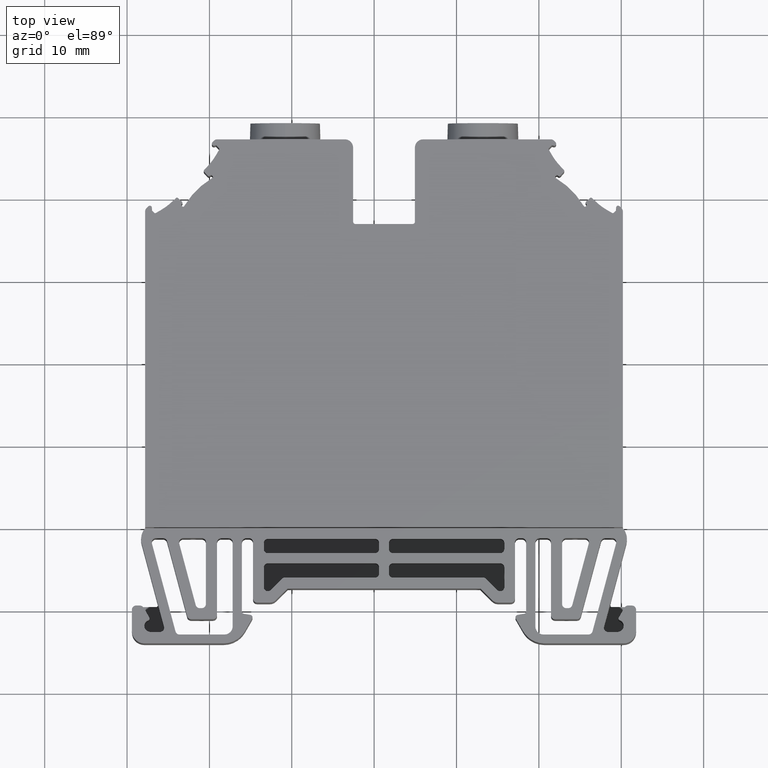
[diagram: clean part render]
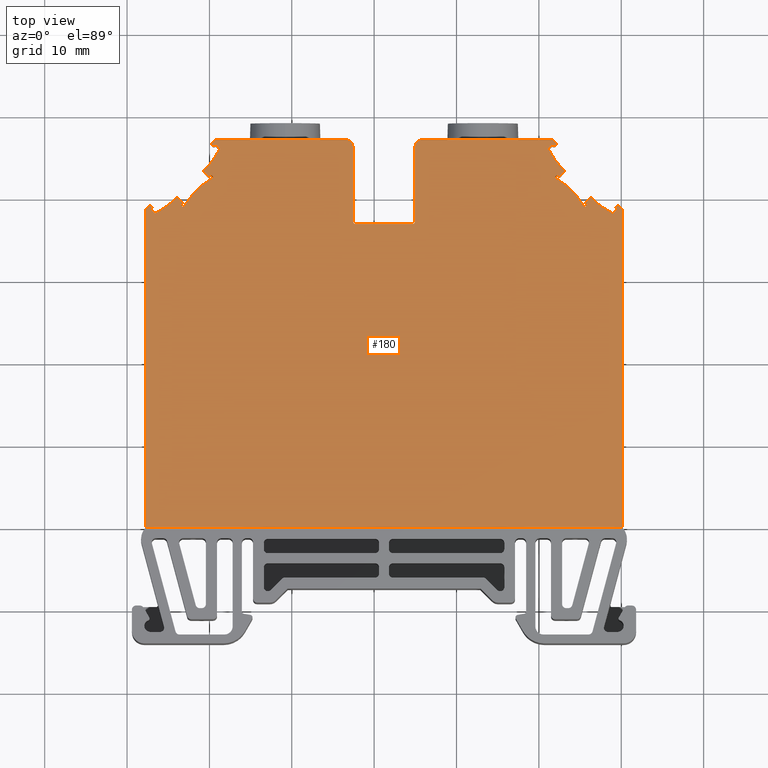
[diagram: same view with one face highlighted and labeled with its STEP entity id]
A machine part, top view. The second image highlights one B-rep face of the part: STEP entity #180.
In plain terms, the highlighted planar face has unit normal (0, 0, 1).
Its self-contained STEP definition (entity closure, byte-faithful):
#59 = B_SPLINE_CURVE_WITH_KNOTS ( 'NONE', 3,
 ( #874, #875, #876, #885 ),
 .UNSPECIFIED., .F., .F.,
 ( 4, 4 ),
 ( 0.0000000000000000000, 1.000000000000000000 ),
 .UNSPECIFIED. ) ;
#71 = B_SPLINE_CURVE_WITH_KNOTS ( 'NONE', 3,
 ( #516, #541, #562, #528 ),
 .UNSPECIFIED., .F., .F.,
 ( 4, 4 ),
 ( 0.0000000000000000000, 1.000000000000000000 ),
 .UNSPECIFIED. ) ;
#73 = B_SPLINE_CURVE_WITH_KNOTS ( 'NONE', 3,
 ( #611, #604, #588, #596 ),
 .UNSPECIFIED., .F., .F.,
 ( 4, 4 ),
 ( 0.0000000000000000000, 0.5142998990586121800 ),
 .UNSPECIFIED. ) ;
#76 = B_SPLINE_CURVE_WITH_KNOTS ( 'NONE', 3,
 ( #880, #882, #869, #877, #881, #883 ),
 .UNSPECIFIED., .F., .F.,
 ( 4, 2, 4 ),
 ( 0.0000000000000000000, 0.5000000000000000000, 1.000000000000000000 ),
 .UNSPECIFIED. ) ;
#77 = B_SPLINE_CURVE_WITH_KNOTS ( 'NONE', 3,
 ( #872, #879, #638, #670 ),
 .UNSPECIFIED., .F., .F.,
 ( 4, 4 ),
 ( 0.0000000000000000000, 1.000000000000000000 ),
 .UNSPECIFIED. ) ;
#79 = B_SPLINE_CURVE_WITH_KNOTS ( 'NONE', 3,
 ( #762, #732, #728, #739 ),
 .UNSPECIFIED., .F., .F.,
 ( 4, 4 ),
 ( 0.0000000000000000000, 1.000000000000000000 ),
 .UNSPECIFIED. ) ;
#80 = B_SPLINE_CURVE_WITH_KNOTS ( 'NONE', 3,
 ( #680, #701, #683, #698 ),
 .UNSPECIFIED., .F., .F.,
 ( 4, 4 ),
 ( 0.0000000000000000000, 1.000000000000000000 ),
 .UNSPECIFIED. ) ;
#82 = B_SPLINE_CURVE_WITH_KNOTS ( 'NONE', 3,
 ( #685, #689, #723, #718 ),
 .UNSPECIFIED., .F., .F.,
 ( 4, 4 ),
 ( 0.0000000000000000000, 1.000000000000000000 ),
 .UNSPECIFIED. ) ;
#83 = B_SPLINE_CURVE_WITH_KNOTS ( 'NONE', 3,
 ( #646, #664, #637, #693 ),
 .UNSPECIFIED., .F., .F.,
 ( 4, 4 ),
 ( 0.5995556975636441300, 1.000000000000000000 ),
 .UNSPECIFIED. ) ;
#180 = ADVANCED_FACE ( 'NONE', ( #4521 ), #4647, .T. ) ;
#337 = LINE ( 'NONE', #340, #12902 ) ;
#340 = CARTESIAN_POINT ( 'NONE',  ( 1802.484136817729900, 786.3375179984279800, 11.99999999997514000 ) ) ;
#351 = DIRECTION ( 'NONE',  ( -0.7070998247899109600, 0.7071137375147489300, -0.0000000000000000000 ) ) ;
#464 = LINE ( 'NONE', #470, #12836 ) ;
#470 = CARTESIAN_POINT ( 'NONE',  ( 1776.006445887929900, 759.6989492850669900, 11.99999999997514300 ) ) ;
#508 = DIRECTION ( 'NONE',  ( 0.7070797824898952300, -0.7071337788523771600, -0.0000000000000000000 ) ) ;
#516 = CARTESIAN_POINT ( 'NONE',  ( 1771.186177953097300, 815.9740314222121900, 11.99999999997514000 ) ) ;
#528 = CARTESIAN_POINT ( 'NONE',  ( 1771.230112365654800, 816.0800984768209200, 11.99999999997514000 ) ) ;
#541 = CARTESIAN_POINT ( 'NONE',  ( 1771.186516307103400, 816.0153130327773900, 11.99999999997514000 ) ) ;
#542 = LINE ( 'NONE', #547, #12851 ) ;
#547 = CARTESIAN_POINT ( 'NONE',  ( 1726.383120220774800, 759.6991722908779800, 11.99999999997514000 ) ) ;
#558 = DIRECTION ( 'NONE',  ( -0.7070819129625589600, -0.7071316485359768800, -0.0000000000000000000 ) ) ;
#562 = CARTESIAN_POINT ( 'NONE',  ( 1771.201161111307600, 816.0506687176288100, 11.99999999997514000 ) ) ;
#588 = CARTESIAN_POINT ( 'NONE',  ( 1773.072389139961200, 813.3858284583248000, 11.99999999997514200 ) ) ;
#596 = CARTESIAN_POINT ( 'NONE',  ( 1773.072382277445700, 813.3334690757390000, 11.99999999997514200 ) ) ;
#597 = LINE ( 'NONE', #607, #12821 ) ;
#598 = DIRECTION ( 'NONE',  ( -0.7073334113240596900, 0.7068800783900114300, 0.0000000000000000000 ) ) ;
#604 = CARTESIAN_POINT ( 'NONE',  ( 1773.050834907399800, 813.4378654418206900, 11.99999999997514000 ) ) ;
#607 = CARTESIAN_POINT ( 'NONE',  ( 1780.047287205135300, 808.7750450128969500, 11.99999999997514000 ) ) ;
#611 = CARTESIAN_POINT ( 'NONE',  ( 1773.013812373946800, 813.4748884522116400, 11.99999999997514000 ) ) ;
#637 = CARTESIAN_POINT ( 'NONE',  ( 1731.197001852201100, 815.9230311366899300, 11.99999999997514000 ) ) ;
#638 = CARTESIAN_POINT ( 'NONE',  ( 1771.186395363491800, 815.9472943929745300, 11.99999999997514000 ) ) ;
#646 = CARTESIAN_POINT ( 'NONE',  ( 1731.203520532713100, 815.9740321466541700, 11.99999999997514000 ) ) ;
#664 = CARTESIAN_POINT ( 'NONE',  ( 1731.203740288928700, 815.9480328719867000, 11.99999999997514000 ) ) ;
#670 = CARTESIAN_POINT ( 'NONE',  ( 1771.186177953097300, 815.9740314222121900, 11.99999999997514000 ) ) ;
#680 = CARTESIAN_POINT ( 'NONE',  ( 1729.369790478448300, 813.1983562413979600, 11.99999999997513800 ) ) ;
#683 = CARTESIAN_POINT ( 'NONE',  ( 1729.317250658052000, 813.2840213240122000, 11.99999999997513800 ) ) ;
#685 = CARTESIAN_POINT ( 'NONE',  ( 1779.076253276670700, 808.2359695359315300, 11.99999999997514000 ) ) ;
#689 = CARTESIAN_POINT ( 'NONE',  ( 1779.027778503189400, 808.1881633500795500, 11.99999999997514000 ) ) ;
#693 = CARTESIAN_POINT ( 'NONE',  ( 1731.183363602596500, 815.8990269410396600, 11.99999999997514200 ) ) ;
#698 = CARTESIAN_POINT ( 'NONE',  ( 1729.317250658516500, 813.3334690578910800, 11.99999999997513800 ) ) ;
#701 = CARTESIAN_POINT ( 'NONE',  ( 1729.336383980962200, 813.2348165595133200, 11.99999999997514000 ) ) ;
#706 = CARTESIAN_POINT ( 'NONE',  ( 1779.691780370580100, 763.3840023575199900, 11.99999999997514300 ) ) ;
#708 = DIRECTION ( 'NONE',  ( 0.7070797824899400800, -0.7071337788523320800, -0.0000000000000000000 ) ) ;
#718 = CARTESIAN_POINT ( 'NONE',  ( 1778.895185811132700, 808.2121334486157600, 11.99999999997513800 ) ) ;
#722 = LINE ( 'NONE', #706, #12842 ) ;
#723 = CARTESIAN_POINT ( 'NONE',  ( 1778.955125158047400, 808.1780762760369000, 11.99999999997514000 ) ) ;
#728 = CARTESIAN_POINT ( 'NONE',  ( 1723.362469429016800, 808.1875614749408200, 11.99999999997514000 ) ) ;
#732 = CARTESIAN_POINT ( 'NONE',  ( 1723.435255594719400, 808.1785016301462300, 11.99999999997514000 ) ) ;
#739 = CARTESIAN_POINT ( 'NONE',  ( 1723.313384148951900, 808.2359722129593800, 11.99999999997514000 ) ) ;
#762 = CARTESIAN_POINT ( 'NONE',  ( 1723.494450459642400, 808.2121312225207200, 11.99999999997514200 ) ) ;
#786 = CARTESIAN_POINT ( 'NONE',  ( 1776.193520654965400, 810.0247344069333600, 11.99999999997514000 ) ) ;
#788 = CARTESIAN_POINT ( 'NONE',  ( 1776.282113768497800, 810.0783403997513700, 11.99999999997514300 ) ) ;
#813 = CARTESIAN_POINT ( 'NONE',  ( 1776.231054543928400, 810.0591257039158100, 11.99999999997514300 ) ) ;
#836 = CARTESIAN_POINT ( 'NONE',  ( 1776.383903954688800, 810.0761133226876600, 11.99999999997514200 ) ) ;
#837 = CARTESIAN_POINT ( 'NONE',  ( 1776.470067691231000, 810.0186838380115000, 11.99999999997514300 ) ) ;
#845 = CARTESIAN_POINT ( 'NONE',  ( 1776.434073921097000, 810.0546838238560700, 11.99999999997514200 ) ) ;
#869 = CARTESIAN_POINT ( 'NONE',  ( 1726.005736156142100, 810.0761133241115900, 11.99999999997514300 ) ) ;
#872 = CARTESIAN_POINT ( 'NONE',  ( 1771.206274483494300, 815.8990304388569300, 11.99999999997514000 ) ) ;
#874 = CARTESIAN_POINT ( 'NONE',  ( 1729.317250658516500, 813.3334690578910800, 11.99999999997513800 ) ) ;
#875 = CARTESIAN_POINT ( 'NONE',  ( 1729.317250658052000, 813.3858284566737200, 11.99999999997513800 ) ) ;
#876 = CARTESIAN_POINT ( 'NONE',  ( 1729.338804890815900, 813.4378654453170200, 11.99999999997514000 ) ) ;
#877 = CARTESIAN_POINT ( 'NONE',  ( 1726.107526342276500, 810.0783403986004000, 11.99999999997514200 ) ) ;
#879 = CARTESIAN_POINT ( 'NONE',  ( 1771.193094206947800, 815.9222940651837900, 11.99999999997514000 ) ) ;
#880 = CARTESIAN_POINT ( 'NONE',  ( 1725.919572682357500, 810.0186840900729500, 11.99999999997514000 ) ) ;
#881 = CARTESIAN_POINT ( 'NONE',  ( 1726.158585566305000, 810.0591257015208800, 11.99999999997514200 ) ) ;
#882 = CARTESIAN_POINT ( 'NONE',  ( 1725.955566189245200, 810.0546838265947800, 11.99999999997514300 ) ) ;
#883 = CARTESIAN_POINT ( 'NONE',  ( 1726.196119425328600, 810.0247344251517900, 11.99999999997514200 ) ) ;
#885 = CARTESIAN_POINT ( 'NONE',  ( 1729.375828342161900, 813.4748893659989300, 11.99999999997514200 ) ) ;
#928 = CARTESIAN_POINT ( 'NONE',  ( 1699.904962431144900, 786.3354006135010600, 11.99999999997514000 ) ) ;
#937 = DIRECTION ( 'NONE',  ( 0.7070815282433028400, 0.7071320332279648100, -0.0000000000000000000 ) ) ;
#1059 = DIRECTION ( 'NONE',  ( -1.396592535537252100E-014, 0.0000000000000000000, 1.000000000000000000 ) ) ;
#1143 = DIRECTION ( 'NONE',  ( 1.000000000000000000, 0.0000000000000000000, 1.387778780781598600E-014 ) ) ;
#1232 = CARTESIAN_POINT ( 'NONE',  ( 1722.695792962174900, 808.4213783346849600, 11.99999999997514700 ) ) ;
#1434 = LINE ( 'NONE', #928, #12761 ) ;
#1462 = B_SPLINE_CURVE_WITH_KNOTS ( 'NONE', 3,
 ( #10961, #10966, #10988, #10990, #10970, #10971 ),
 .UNSPECIFIED., .F., .F.,
 ( 4, 2, 4 ),
 ( 0.0000000000000000000, 0.5000000000000000000, 1.000000000000000000 ),
 .UNSPECIFIED. ) ;
#1514 = EDGE_CURVE ( 'NONE', #5542, #3596, #1434, .T. ) ;
#1543 = EDGE_CURVE ( 'NONE', #5540, #3630, #464, .T. ) ;
#1551 = EDGE_CURVE ( 'NONE', #3615, #5293, #71, .T. ) ;
#1553 = EDGE_CURVE ( 'NONE', #5485, #3620, #542, .T. ) ;
#1560 = EDGE_CURVE ( 'NONE', #3581, #5457, #597, .T. ) ;
#1565 = EDGE_CURVE ( 'NONE', #3618, #14261, #73, .T. ) ;
#1569 = EDGE_CURVE ( 'NONE', #3574, #3621, #59, .T. ) ;
#1570 = EDGE_CURVE ( 'NONE', #3524, #5440, #76, .T. ) ;
#1572 = EDGE_CURVE ( 'NONE', #3597, #3615, #77, .T. ) ;
#1582 = EDGE_CURVE ( 'NONE', #14186, #3584, #83, .T. ) ;
#1583 = EDGE_CURVE ( 'NONE', #5454, #3627, #82, .T. ) ;
#1590 = EDGE_CURVE ( 'NONE', #5432, #14251, #722, .T. ) ;
#1592 = EDGE_CURVE ( 'NONE', #5279, #3574, #80, .T. ) ;
#1595 = EDGE_CURVE ( 'NONE', #3628, #5464, #79, .T. ) ;
#1620 = EDGE_CURVE ( 'NONE', #5517, #3625, #9932, .T. ) ;
#1660 = EDGE_CURVE ( 'NONE', #5473, #3635, #337, .T. ) ;
#1681 = EDGE_CURVE ( 'NONE', #3572, #3652, #12936, .T. ) ;
#1696 = EDGE_CURVE ( 'NONE', #3524, #3666, #6484, .T. ) ;
#1712 = EDGE_CURVE ( 'NONE', #3753, #3596, #12885, .T. ) ;
#1731 = EDGE_CURVE ( 'NONE', #3647, #3687, #4632, .T. ) ;
#1739 = EDGE_CURVE ( 'NONE', #3646, #3647, #6588, .T. ) ;
#1743 = EDGE_CURVE ( 'NONE', #3644, #3683, #4646, .T. ) ;
#1746 = EDGE_CURVE ( 'NONE', #3673, #3676, #6629, .T. ) ;
#1747 = EDGE_CURVE ( 'NONE', #3670, #3687, #6643, .T. ) ;
#1750 = EDGE_CURVE ( 'NONE', #3666, #3695, #4667, .T. ) ;
#1753 = EDGE_CURVE ( 'NONE', #3591, #3630, #4663, .T. ) ;
#1754 = EDGE_CURVE ( 'NONE', #14249, #3667, #4570, .T. ) ;
#1755 = EDGE_CURVE ( 'NONE', #3668, #3694, #6635, .T. ) ;
#1761 = EDGE_CURVE ( 'NONE', #3584, #3639, #6689, .T. ) ;
#1768 = EDGE_CURVE ( 'NONE', #3742, #3688, #4766, .T. ) ;
#1771 = EDGE_CURVE ( 'NONE', #3694, #3646, #4702, .T. ) ;
#1772 = EDGE_CURVE ( 'NONE', #3645, #3625, #6682, .T. ) ;
#1779 = EDGE_CURVE ( 'NONE', #3695, #3628, #6725, .T. ) ;
#1784 = EDGE_CURVE ( 'NONE', #3639, #3728, #4725, .T. ) ;
#1785 = EDGE_CURVE ( 'NONE', #3591, #3667, #4778, .T. ) ;
#1791 = EDGE_CURVE ( 'NONE', #3728, #3621, #6768, .T. ) ;
#1793 = EDGE_CURVE ( 'NONE', #3753, #3691, #6766, .T. ) ;
#1811 = EDGE_CURVE ( 'NONE', #3683, #3597, #6811, .T. ) ;
#1814 = EDGE_CURVE ( 'NONE', #3620, #3688, #4832, .T. ) ;
#1817 = EDGE_CURVE ( 'NONE', #3700, #3722, #6830, .T. ) ;
#1819 = EDGE_CURVE ( 'NONE', #3635, #3673, #4839, .T. ) ;
#1826 = EDGE_CURVE ( 'NONE', #3670, #3691, #4891, .T. ) ;
#1827 = EDGE_CURVE ( 'NONE', #3581, #3709, #4906, .T. ) ;
#1828 = EDGE_CURVE ( 'NONE', #3741, #3645, #4808, .T. ) ;
#1829 = EDGE_CURVE ( 'NONE', #3676, #3668, #4904, .T. ) ;
#1834 = EDGE_CURVE ( 'NONE', #3736, #5514, #9919, .T. ) ;
#1838 = EDGE_CURVE ( 'NONE', #3700, #3652, #6903, .T. ) ;
#1839 = EDGE_CURVE ( 'NONE', #3722, #3709, #6916, .T. ) ;
#1844 = EDGE_CURVE ( 'NONE', #3742, #3736, #4868, .T. ) ;
#1853 = EDGE_CURVE ( 'NONE', #3627, #3741, #6946, .T. ) ;
#1855 = EDGE_CURVE ( 'NONE', #3618, #3644, #6963, .T. ) ;
#1993 = EDGE_CURVE ( 'NONE', #5473, #14286, #9984, .T. ) ;
#1995 = EDGE_CURVE ( 'NONE', #5354, #5514, #7760, .T. ) ;
#1996 = EDGE_CURVE ( 'NONE', #5517, #5373, #7752, .T. ) ;
#2004 = EDGE_CURVE ( 'NONE', #5413, #14369, #9997, .T. ) ;
#2016 = EDGE_CURVE ( 'NONE', #14221, #5277, #7827, .T. ) ;
#2018 = EDGE_CURVE ( 'NONE', #5264, #5472, #9980, .T. ) ;
#2021 = EDGE_CURVE ( 'NONE', #5315, #5432, #10004, .T. ) ;
#2030 = EDGE_CURVE ( 'NONE', #5540, #5413, #10013, .T. ) ;
#2031 = EDGE_CURVE ( 'NONE', #5440, #5259, #7857, .T. ) ;
#2036 = EDGE_CURVE ( 'NONE', #14291, #5485, #10017, .T. ) ;
#2038 = EDGE_CURVE ( 'NONE', #5472, #5542, #10018, .T. ) ;
#2044 = EDGE_CURVE ( 'NONE', #5290, #5464, #7955, .T. ) ;
#2084 = EDGE_CURVE ( 'NONE', #5339, #14273, #8116, .T. ) ;
#2091 = EDGE_CURVE ( 'NONE', #5348, #5454, #8169, .T. ) ;
#2100 = EDGE_CURVE ( 'NONE', #5430, #5457, #9875, .T. ) ;
#2101 = EDGE_CURVE ( 'NONE', #6432, #5430, #9864, .T. ) ;
#2130 = EDGE_CURVE ( 'NONE', #5386, #14340, #9913, .T. ) ;
#2242 = EDGE_CURVE ( 'NONE', #5275, #14347, #8918, .T. ) ;
#2248 = EDGE_CURVE ( 'NONE', #5354, #14393, #2907, .T. ) ;
#2264 = EDGE_CURVE ( 'NONE', #5293, #5275, #9098, .T. ) ;
#2268 = EDGE_CURVE ( 'NONE', #5315, #14332, #9100, .T. ) ;
#2272 = EDGE_CURVE ( 'NONE', #6432, #5348, #2917, .T. ) ;
#2273 = EDGE_CURVE ( 'NONE', #5358, #5373, #2910, .T. ) ;
#2274 = EDGE_CURVE ( 'NONE', #5277, #5264, #9127, .T. ) ;
#2283 = EDGE_CURVE ( 'NONE', #5259, #14358, #2920, .T. ) ;
#2290 = EDGE_CURVE ( 'NONE', #14389, #5279, #9181, .T. ) ;
#2293 = EDGE_CURVE ( 'NONE', #14302, #5290, #9197, .T. ) ;
#2302 = EDGE_CURVE ( 'NONE', #5364, #14259, #2895, .T. ) ;
#2303 = EDGE_CURVE ( 'NONE', #5339, #14370, #2896, .T. ) ;
#2323 = EDGE_CURVE ( 'NONE', #5364, #5358, #2792, .T. ) ;
#2375 = EDGE_CURVE ( 'NONE', #14221, #14186, #2775, .T. ) ;
#2443 = EDGE_CURVE ( 'NONE', #14286, #14347, #2860, .T. ) ;
#2445 = EDGE_CURVE ( 'NONE', #14259, #14291, #2846, .T. ) ;
#2446 = EDGE_CURVE ( 'NONE', #14261, #14273, #2861, .T. ) ;
#2455 = EDGE_CURVE ( 'NONE', #14251, #14249, #4020, .T. ) ;
#2489 = EDGE_CURVE ( 'NONE', #14340, #14302, #2839, .T. ) ;
#2534 = EDGE_CURVE ( 'NONE', #14358, #14266, #2837, .T. ) ;
#2547 = EDGE_CURVE ( 'NONE', #14266, #14369, #10688, .T. ) ;
#2587 = EDGE_CURVE ( 'NONE', #14393, #14370, #10852, .T. ) ;
#2619 = EDGE_CURVE ( 'NONE', #14332, #14389, #1462, .T. ) ;
#2698 = EDGE_CURVE ( 'NONE', #3572, #5386, #11276, .T. ) ;
#2775 = B_SPLINE_CURVE_WITH_KNOTS ( 'NONE', 3,
 ( #9610, #9599, #9629, #9603 ),
 .UNSPECIFIED., .F., .F.,
 ( 4, 4 ),
 ( 0.0000000000000000000, 0.5995556975636441300 ),
 .UNSPECIFIED. ) ;
#2792 = B_SPLINE_CURVE_WITH_KNOTS ( 'NONE', 3,
 ( #9423, #9395, #9429, #9416 ),
 .UNSPECIFIED., .F., .F.,
 ( 4, 4 ),
 ( 0.0000000000000000000, 1.000000000000000000 ),
 .UNSPECIFIED. ) ;
#2837 = B_SPLINE_CURVE_WITH_KNOTS ( 'NONE', 3,
 ( #10629, #10652, #10616, #10645 ),
 .UNSPECIFIED., .F., .F.,
 ( 4, 4 ),
 ( 0.5135125593690452700, 1.000000000000000000 ),
 .UNSPECIFIED. ) ;
#2839 = B_SPLINE_CURVE_WITH_KNOTS ( 'NONE', 3,
 ( #10407, #10425, #10409, #10416 ),
 .UNSPECIFIED., .F., .F.,
 ( 4, 4 ),
 ( 0.8999697946599561900, 1.000000000000000000 ),
 .UNSPECIFIED. ) ;
#2846 = B_SPLINE_CURVE_WITH_KNOTS ( 'NONE', 3,
 ( #10192, #10191, #10213, #10226 ),
 .UNSPECIFIED., .F., .F.,
 ( 4, 4 ),
 ( 0.0000000000000000000, 0.5000296367248320300 ),
 .UNSPECIFIED. ) ;
#2860 = B_SPLINE_CURVE_WITH_KNOTS ( 'NONE', 3,
 ( #10175, #10143, #10235, #10206, #10218, #10229 ),
 .UNSPECIFIED., .F., .F.,
 ( 4, 2, 4 ),
 ( 0.2999920678755562100, 0.6499960339377781600, 1.000000000000000000 ),
 .UNSPECIFIED. ) ;
#2861 = B_SPLINE_CURVE_WITH_KNOTS ( 'NONE', 3,
 ( #10215, #10217, #10231, #10203 ),
 .UNSPECIFIED., .F., .F.,
 ( 4, 4 ),
 ( 0.5142998990586121800, 1.000000000000000000 ),
 .UNSPECIFIED. ) ;
#2895 = B_SPLINE_CURVE_WITH_KNOTS ( 'NONE', 3,
 ( #9317, #9294, #9274, #9285 ),
 .UNSPECIFIED., .F., .F.,
 ( 4, 4 ),
 ( 0.0000000000000000000, 1.000000000000000000 ),
 .UNSPECIFIED. ) ;
#2896 = B_SPLINE_CURVE_WITH_KNOTS ( 'NONE', 3,
 ( #9295, #9297, #9306, #9311, #9323, #9292 ),
 .UNSPECIFIED., .F., .F.,
 ( 4, 2, 4 ),
 ( 0.0000000000000000000, 0.5000000000000000000, 1.000000000000000000 ),
 .UNSPECIFIED. ) ;
#2907 = B_SPLINE_CURVE_WITH_KNOTS ( 'NONE', 3,
 ( #9048, #9010, #9029, #9030, #9032, #9036 ),
 .UNSPECIFIED., .F., .F.,
 ( 4, 2, 4 ),
 ( 0.0000000000000000000, 0.5000000000000000000, 1.000000000000000000 ),
 .UNSPECIFIED. ) ;
#2910 = B_SPLINE_CURVE_WITH_KNOTS ( 'NONE', 3,
 ( #9136, #9139, #9158, #9159 ),
 .UNSPECIFIED., .F., .F.,
 ( 4, 4 ),
 ( 0.0000000000000000000, 1.000000000000000000 ),
 .UNSPECIFIED. ) ;
#2917 = B_SPLINE_CURVE_WITH_KNOTS ( 'NONE', 3,
 ( #9161, #9156, #9134, #9115 ),
 .UNSPECIFIED., .F., .F.,
 ( 4, 4 ),
 ( 0.0000000000000000000, 1.000000000000000000 ),
 .UNSPECIFIED. ) ;
#2920 = B_SPLINE_CURVE_WITH_KNOTS ( 'NONE', 3,
 ( #9200, #9187, #9205, #9170 ),
 .UNSPECIFIED., .F., .F.,
 ( 4, 4 ),
 ( 0.0000000000000000000, 0.5135125593690452700 ),
 .UNSPECIFIED. ) ;
#3432 = EDGE_LOOP ( 'NONE', ( #13790, #13736, #13793, #13740, #13742, #13757, #13734, #13763, #13678, #13779, #13794, #13680, #13738, #13777, #13797, #13767, #13768, #13773, #13792, #13787, #13780, #13739, #13735, #13726, #13671, #13723, #13762, #13741, #13781, #13791, #13789, #13764, #13765, #13729, #13672, #13674, #13677, #13749, #13758, #13759, #13827, #13822, #13841, #13828, #13821, #13857, #13806, #13813, #13858, #13747, #13816, #13812, #13824, #13852, #13855, #13859, #13823, #13743, #13830, #13833, #13854, #13801, #13835, #13744, #13798, #13837, #13820, #13842, #13840, #13847, #13851, #13817, #13829, #13799, #13825, #13826, #13766, #13802, #13818, #13849, #13831, #13810, #13754, #13845, #13809, #13834, #13853, #13843, #13848, #13856, #13850, #13803 ) ) ;
#3524 = VERTEX_POINT ( 'NONE', #11646 ) ;
#3572 = VERTEX_POINT ( 'NONE', #11731 ) ;
#3574 = VERTEX_POINT ( 'NONE', #11745 ) ;
#3581 = VERTEX_POINT ( 'NONE', #11737 ) ;
#3584 = VERTEX_POINT ( 'NONE', #11759 ) ;
#3591 = VERTEX_POINT ( 'NONE', #11758 ) ;
#3596 = VERTEX_POINT ( 'NONE', #11760 ) ;
#3597 = VERTEX_POINT ( 'NONE', #11762 ) ;
#3615 = VERTEX_POINT ( 'NONE', #11804 ) ;
#3618 = VERTEX_POINT ( 'NONE', #11815 ) ;
#3620 = VERTEX_POINT ( 'NONE', #11817 ) ;
#3621 = VERTEX_POINT ( 'NONE', #11800 ) ;
#3625 = VERTEX_POINT ( 'NONE', #11777 ) ;
#3627 = VERTEX_POINT ( 'NONE', #11816 ) ;
#3628 = VERTEX_POINT ( 'NONE', #11802 ) ;
#3630 = VERTEX_POINT ( 'NONE', #11834 ) ;
#3635 = VERTEX_POINT ( 'NONE', #11794 ) ;
#3639 = VERTEX_POINT ( 'NONE', #11803 ) ;
#3644 = VERTEX_POINT ( 'NONE', #11797 ) ;
#3645 = VERTEX_POINT ( 'NONE', #11806 ) ;
#3646 = VERTEX_POINT ( 'NONE', #11774 ) ;
#3647 = VERTEX_POINT ( 'NONE', #11805 ) ;
#3652 = VERTEX_POINT ( 'NONE', #11811 ) ;
#3666 = VERTEX_POINT ( 'NONE', #11857 ) ;
#3667 = VERTEX_POINT ( 'NONE', #11877 ) ;
#3668 = VERTEX_POINT ( 'NONE', #11886 ) ;
#3670 = VERTEX_POINT ( 'NONE', #11884 ) ;
#3673 = VERTEX_POINT ( 'NONE', #11889 ) ;
#3676 = VERTEX_POINT ( 'NONE', #11845 ) ;
#3683 = VERTEX_POINT ( 'NONE', #11844 ) ;
#3687 = VERTEX_POINT ( 'NONE', #11887 ) ;
#3688 = VERTEX_POINT ( 'NONE', #11851 ) ;
#3691 = VERTEX_POINT ( 'NONE', #11896 ) ;
#3694 = VERTEX_POINT ( 'NONE', #11870 ) ;
#3695 = VERTEX_POINT ( 'NONE', #11895 ) ;
#3700 = VERTEX_POINT ( 'NONE', #11882 ) ;
#3709 = VERTEX_POINT ( 'NONE', #11854 ) ;
#3722 = VERTEX_POINT ( 'NONE', #11881 ) ;
#3728 = VERTEX_POINT ( 'NONE', #11863 ) ;
#3736 = VERTEX_POINT ( 'NONE', #11843 ) ;
#3741 = VERTEX_POINT ( 'NONE', #11888 ) ;
#3742 = VERTEX_POINT ( 'NONE', #11847 ) ;
#3753 = VERTEX_POINT ( 'NONE', #11875 ) ;
#3810 = VECTOR ( 'NONE', #8117, 1000.000000000000100 ) ;
#3842 = VECTOR ( 'NONE', #8205, 1000.000000000000000 ) ;
#3886 = VECTOR ( 'NONE', #9004, 999.9999999999998900 ) ;
#3898 = VECTOR ( 'NONE', #9108, 999.9999999999998900 ) ;
#3900 = VECTOR ( 'NONE', #9153, 1000.000000000000100 ) ;
#3911 = VECTOR ( 'NONE', #9182, 1000.000000000000100 ) ;
#3919 = VECTOR ( 'NONE', #9163, 1000.000000000000100 ) ;
#3945 = VECTOR ( 'NONE', #9257, 1000.000000000000000 ) ;
#4020 = CIRCLE ( 'NONE', #4067, 0.1499999999994283700 ) ;
#4067 = AXIS2_PLACEMENT_3D ( 'NONE', #10265, #10266, #10280 ) ;
#4114 = VECTOR ( 'NONE', #10700, 1000.000000000000000 ) ;
#4118 = VECTOR ( 'NONE', #10853, 1000.000000000000000 ) ;
#4221 = VECTOR ( 'NONE', #11313, 1000.000000000000100 ) ;
#4521 = FACE_OUTER_BOUND ( 'NONE', #3432, .T. ) ;
#4565 = AXIS2_PLACEMENT_3D ( 'NONE', #6633, #6672, #6657 ) ;
#4568 = AXIS2_PLACEMENT_3D ( 'NONE', #6649, #6637, #6658 ) ;
#4570 = CIRCLE ( 'NONE', #4565, 0.1499999999994283700 ) ;
#4579 = VECTOR ( 'NONE', #6712, 1000.000000000000200 ) ;
#4588 = VECTOR ( 'NONE', #6666, 1000.000000000000000 ) ;
#4591 = CARTESIAN_POINT ( 'NONE',  ( 1730.544887079235000, 816.6239477739419500, 11.99999999997514000 ) ) ;
#4596 = VECTOR ( 'NONE', #6659, 1000.000000000000000 ) ;
#4626 = AXIS2_PLACEMENT_3D ( 'NONE', #6605, #6587, #6590 ) ;
#4628 = VECTOR ( 'NONE', #6589, 1000.000000000000000 ) ;
#4632 = CIRCLE ( 'NONE', #4626, 0.2964426877625214700 ) ;
#4633 = DIRECTION ( 'NONE',  ( 1.000000000000000000, 0.0000000000000000000, -0.0000000000000000000 ) ) ;
#4639 = AXIS2_PLACEMENT_3D ( 'NONE', #6664, #6644, #6656 ) ;
#4646 = CIRCLE ( 'NONE', #4648, 7.499996370875283700 ) ;
#4647 = PLANE ( 'NONE',  #13004 ) ;
#4648 = AXIS2_PLACEMENT_3D ( 'NONE', #6595, #6627, #6639 ) ;
#4650 = VECTOR ( 'NONE', #6638, 1000.000000000000000 ) ;
#4660 = DIRECTION ( 'NONE',  ( 0.0000000000000000000, 0.0000000000000000000, 1.000000000000000000 ) ) ;
#4663 = CIRCLE ( 'NONE', #4568, 0.1499999999998724600 ) ;
#4667 = CIRCLE ( 'NONE', #4639, 7.500003262180587900 ) ;
#4678 = AXIS2_PLACEMENT_3D ( 'NONE', #6703, #6704, #6706 ) ;
#4680 = AXIS2_PLACEMENT_3D ( 'NONE', #6736, #6726, #6761 ) ;
#4686 = VECTOR ( 'NONE', #6707, 1000.000000000000000 ) ;
#4702 = CIRCLE ( 'NONE', #4678, 0.2964426877585246700 ) ;
#4718 = VECTOR ( 'NONE', #6786, 1000.000000000000100 ) ;
#4720 = VECTOR ( 'NONE', #6792, 1000.000000000000000 ) ;
#4725 = CIRCLE ( 'NONE', #4782, 7.499996370870176700 ) ;
#4739 = VECTOR ( 'NONE', #6760, 1000.000000000000100 ) ;
#4741 = AXIS2_PLACEMENT_3D ( 'NONE', #6696, #6715, #6678 ) ;
#4766 = CIRCLE ( 'NONE', #4741, 9.999999999993569600 ) ;
#4778 = CIRCLE ( 'NONE', #4680, 9.999999565563966200 ) ;
#4782 = AXIS2_PLACEMENT_3D ( 'NONE', #6722, #6724, #6758 ) ;
#4789 = VECTOR ( 'NONE', #6922, 1000.000000000000100 ) ;
#4791 = VECTOR ( 'NONE', #6931, 1000.000000000000000 ) ;
#4799 = VECTOR ( 'NONE', #6826, 1000.000000000000100 ) ;
#4806 = AXIS2_PLACEMENT_3D ( 'NONE', #6865, #6861, #6884 ) ;
#4808 = CIRCLE ( 'NONE', #4816, 7.500003262180587900 ) ;
#4816 = AXIS2_PLACEMENT_3D ( 'NONE', #6862, #6880, #6881 ) ;
#4832 = CIRCLE ( 'NONE', #4865, 0.1499999999998724600 ) ;
#4839 = CIRCLE ( 'NONE', #4841, 0.5000044190970331900 ) ;
#4841 = AXIS2_PLACEMENT_3D ( 'NONE', #6859, #6883, #6857 ) ;
#4850 = VECTOR ( 'NONE', #6844, 1000.000000000000000 ) ;
#4852 = AXIS2_PLACEMENT_3D ( 'NONE', #6886, #6874, #6887 ) ;
#4865 = AXIS2_PLACEMENT_3D ( 'NONE', #6813, #6832, #6833 ) ;
#4868 = CIRCLE ( 'NONE', #4959, 0.1499999999983181500 ) ;
#4873 = AXIS2_PLACEMENT_3D ( 'NONE', #6873, #6867, #6889 ) ;
#4891 = CIRCLE ( 'NONE', #4806, 0.9999999999905639900 ) ;
#4904 = CIRCLE ( 'NONE', #4873, 0.9999999999834585700 ) ;
#4906 = CIRCLE ( 'NONE', #4852, 0.4999999999999449300 ) ;
#4908 = VECTOR ( 'NONE', #6950, 1000.000000000000000 ) ;
#4959 = AXIS2_PLACEMENT_3D ( 'NONE', #6910, #6907, #6899 ) ;
#5017 = VECTOR ( 'NONE', #6972, 999.9999999999998900 ) ;
#5036 = VECTOR ( 'NONE', #7838, 1000.000000000000100 ) ;
#5038 = VECTOR ( 'NONE', #8000, 1000.000000000000100 ) ;
#5082 = VECTOR ( 'NONE', #7759, 1000.000000000000000 ) ;
#5094 = VECTOR ( 'NONE', #7761, 1000.000000000000000 ) ;
#5099 = VECTOR ( 'NONE', #7901, 1000.000000000000100 ) ;
#5259 = VERTEX_POINT ( 'NONE', #11926 ) ;
#5264 = VERTEX_POINT ( 'NONE', #11954 ) ;
#5275 = VERTEX_POINT ( 'NONE', #11838 ) ;
#5277 = VERTEX_POINT ( 'NONE', #11949 ) ;
#5279 = VERTEX_POINT ( 'NONE', #11929 ) ;
#5290 = VERTEX_POINT ( 'NONE', #11902 ) ;
#5293 = VERTEX_POINT ( 'NONE', #11931 ) ;
#5315 = VERTEX_POINT ( 'NONE', #11960 ) ;
#5339 = VERTEX_POINT ( 'NONE', #12015 ) ;
#5348 = VERTEX_POINT ( 'NONE', #11993 ) ;
#5354 = VERTEX_POINT ( 'NONE', #11963 ) ;
#5358 = VERTEX_POINT ( 'NONE', #11979 ) ;
#5364 = VERTEX_POINT ( 'NONE', #11998 ) ;
#5373 = VERTEX_POINT ( 'NONE', #11971 ) ;
#5386 = VERTEX_POINT ( 'NONE', #11975 ) ;
#5413 = VERTEX_POINT ( 'NONE', #12050 ) ;
#5430 = VERTEX_POINT ( 'NONE', #12089 ) ;
#5432 = VERTEX_POINT ( 'NONE', #12079 ) ;
#5440 = VERTEX_POINT ( 'NONE', #12029 ) ;
#5454 = VERTEX_POINT ( 'NONE', #12138 ) ;
#5457 = VERTEX_POINT ( 'NONE', #12134 ) ;
#5464 = VERTEX_POINT ( 'NONE', #12111 ) ;
#5472 = VERTEX_POINT ( 'NONE', #12122 ) ;
#5473 = VERTEX_POINT ( 'NONE', #12126 ) ;
#5485 = VERTEX_POINT ( 'NONE', #12150 ) ;
#5514 = VERTEX_POINT ( 'NONE', #12152 ) ;
#5517 = VERTEX_POINT ( 'NONE', #12096 ) ;
#5540 = VERTEX_POINT ( 'NONE', #12124 ) ;
#5542 = VERTEX_POINT ( 'NONE', #12133 ) ;
#6432 = VERTEX_POINT ( 'NONE', #12180 ) ;
#6474 = DIRECTION ( 'NONE',  ( -0.7070473089351758700, -0.7071662484363390200, 0.0000000000000000000 ) ) ;
#6480 = CARTESIAN_POINT ( 'NONE',  ( 1725.919572768400000, 810.0186841748600300, 11.99999999997514000 ) ) ;
#6484 = LINE ( 'NONE', #6480, #12954 ) ;
#6501 = CARTESIAN_POINT ( 'NONE',  ( 1730.927821718094900, 816.6533374976230600, 11.99999999997514500 ) ) ;
#6505 = DIRECTION ( 'NONE',  ( 1.000000000000000000, 0.0000000000000000000, 1.387766515373116300E-014 ) ) ;
#6529 = DIRECTION ( 'NONE',  ( -1.396592535537252100E-014, 0.0000000000000000000, 1.000000000000000000 ) ) ;
#6587 = DIRECTION ( 'NONE',  ( 1.396592535537252100E-014, -0.0000000000000000000, -1.000000000000000000 ) ) ;
#6588 = LINE ( 'NONE', #6624, #4628 ) ;
#6589 = DIRECTION ( 'NONE',  ( -1.000000000000000000, 6.429451335922339900E-014, -0.0000000000000000000 ) ) ;
#6590 = DIRECTION ( 'NONE',  ( 1.000000000000000000, 0.0000000000000000000, 1.170360105064547300E-014 ) ) ;
#6595 = CARTESIAN_POINT ( 'NONE',  ( 1778.050134030254900, 819.0451736349219800, 11.99999999997521400 ) ) ;
#6605 = CARTESIAN_POINT ( 'NONE',  ( 1747.741265426229800, 807.1697758605189400, 11.99999999997514000 ) ) ;
#6624 = CARTESIAN_POINT ( 'NONE',  ( 1751.194820053075100, 806.8733331727560200, 11.99999999997514000 ) ) ;
#6627 = DIRECTION ( 'NONE',  ( 1.396592535537252100E-014, -0.0000000000000000000, -1.000000000000000000 ) ) ;
#6629 = LINE ( 'NONE', #6634, #4588 ) ;
#6633 = CARTESIAN_POINT ( 'NONE',  ( 1730.274027503090100, 812.5933888926201700, 11.99999999997513800 ) ) ;
#6634 = CARTESIAN_POINT ( 'NONE',  ( 1751.194810448410400, 817.1533319949289800, 11.99999999997514300 ) ) ;
#6635 = LINE ( 'NONE', #6640, #4596 ) ;
#6637 = DIRECTION ( 'NONE',  ( 1.396592535537252100E-014, -0.0000000000000000000, -1.000000000000000000 ) ) ;
#6638 = DIRECTION ( 'NONE',  ( 4.803124750951297600E-007, -0.9999999999998846500, -0.0000000000000000000 ) ) ;
#6639 = DIRECTION ( 'NONE',  ( 1.000000000000000000, -1.776357698950067800E-013, 1.387779452304740500E-014 ) ) ;
#6640 = CARTESIAN_POINT ( 'NONE',  ( 1754.944782688340000, 734.9692101429550300, 11.99999999997514000 ) ) ;
#6643 = LINE ( 'NONE', #6645, #4650 ) ;
#6644 = DIRECTION ( 'NONE',  ( 1.396592535537252100E-014, -0.0000000000000000000, -1.000000000000000000 ) ) ;
#6645 = CARTESIAN_POINT ( 'NONE',  ( 1747.444857417305500, 734.9692101429611700, 11.99999999997514000 ) ) ;
#6649 = CARTESIAN_POINT ( 'NONE',  ( 1726.800940589975000, 809.1203523105559700, 11.99999999997513800 ) ) ;
#6656 = DIRECTION ( 'NONE',  ( 1.000000000000000000, -8.881780333805066900E-014, 1.387778177157041700E-014 ) ) ;
#6657 = DIRECTION ( 'NONE',  ( 1.000000000000000000, 0.0000000000000000000, 1.156482317322278700E-014 ) ) ;
#6658 = DIRECTION ( 'NONE',  ( 1.000000000000000000, -7.401486830840670000E-013, 1.156482317318854700E-014 ) ) ;
#6659 = DIRECTION ( 'NONE',  ( -4.803139086683387800E-007, -0.9999999999998846500, -0.0000000000000000000 ) ) ;
#6664 = CARTESIAN_POINT ( 'NONE',  ( 1720.353107425419900, 815.0587809009080000, 11.99999999997506500 ) ) ;
#6666 = DIRECTION ( 'NONE',  ( -0.9999999999999932300, -1.168676068482604000E-007, -0.0000000000000000000 ) ) ;
#6672 = DIRECTION ( 'NONE',  ( 1.396592535537252100E-014, -0.0000000000000000000, -1.000000000000000000 ) ) ;
#6678 = DIRECTION ( 'NONE',  ( 1.000000000000000000, -1.110223024625870500E-014, 1.405126015542117300E-014 ) ) ;
#6682 = LINE ( 'NONE', #6700, #4686 ) ;
#6689 = LINE ( 'NONE', #6711, #4579 ) ;
#6696 = CARTESIAN_POINT ( 'NONE',  ( 1766.888320670429900, 803.8929342932099200, 11.99999999997506900 ) ) ;
#6700 = CARTESIAN_POINT ( 'NONE',  ( 1776.732867890455100, 809.7558456587581800, 11.99999999997514000 ) ) ;
#6703 = CARTESIAN_POINT ( 'NONE',  ( 1754.648374679520000, 807.1697758605189400, 11.99999999997513500 ) ) ;
#6704 = DIRECTION ( 'NONE',  ( 1.396592535537252100E-014, -0.0000000000000000000, -1.000000000000000000 ) ) ;
#6706 = DIRECTION ( 'NONE',  ( 1.000000000000000000, 0.0000000000000000000, 1.170360105080326700E-014 ) ) ;
#6707 = DIRECTION ( 'NONE',  ( -0.7070556676921386800, 0.7071578909864642000, 0.0000000000000000000 ) ) ;
#6711 = CARTESIAN_POINT ( 'NONE',  ( 1731.183363602585100, 815.8990269410461500, 11.99999999997514000 ) ) ;
#6712 = DIRECTION ( 'NONE',  ( -0.5000394122099030000, -0.8660026479386622200, 0.0000000000000000000 ) ) ;
#6715 = DIRECTION ( 'NONE',  ( 1.396592535537252100E-014, -0.0000000000000000000, -1.000000000000000000 ) ) ;
#6722 = CARTESIAN_POINT ( 'NONE',  ( 1724.339505770960400, 819.0451736415740200, 11.99999999997504800 ) ) ;
#6724 = DIRECTION ( 'NONE',  ( 1.396592535537252100E-014, -0.0000000000000000000, -1.000000000000000000 ) ) ;
#6725 = LINE ( 'NONE', #6738, #4739 ) ;
#6726 = DIRECTION ( 'NONE',  ( 1.396592535537252100E-014, -0.0000000000000000000, -1.000000000000000000 ) ) ;
#6736 = CARTESIAN_POINT ( 'NONE',  ( 1735.501319435365100, 803.8929342932499400, 11.99999999997525900 ) ) ;
#6738 = CARTESIAN_POINT ( 'NONE',  ( 1724.103105352000300, 808.5635853992080200, 11.99999999997514000 ) ) ;
#6758 = DIRECTION ( 'NONE',  ( 1.000000000000000000, -1.480298082459397900E-014, 1.387779452305685400E-014 ) ) ;
#6760 = DIRECTION ( 'NONE',  ( -0.8659963714505285500, -0.5000502821062280400, 0.0000000000000000000 ) ) ;
#6761 = DIRECTION ( 'NONE',  ( 1.000000000000000000, -4.440892291428989800E-014, 1.405126076584953700E-014 ) ) ;
#6766 = LINE ( 'NONE', #6777, #4720 ) ;
#6768 = LINE ( 'NONE', #6771, #4718 ) ;
#6771 = CARTESIAN_POINT ( 'NONE',  ( 1729.642928129895400, 813.7419994162610200, 11.99999999997514000 ) ) ;
#6777 = CARTESIAN_POINT ( 'NONE',  ( 1751.274869408235000, 817.1533296974470200, 11.99999999997514000 ) ) ;
#6786 = DIRECTION ( 'NONE',  ( -0.7070931955535184600, -0.7071203665585610300, 0.0000000000000000000 ) ) ;
#6792 = DIRECTION ( 'NONE',  ( 0.9999999999998197000, -6.005438317064957600E-007, -0.0000000000000000000 ) ) ;
#6811 = LINE ( 'NONE', #6818, #4799 ) ;
#6813 = CARTESIAN_POINT ( 'NONE',  ( 1775.588699888215200, 809.1203525342369900, 11.99999999997513800 ) ) ;
#6818 = CARTESIAN_POINT ( 'NONE',  ( 1771.554837357055000, 815.2953647766589700, 11.99999999997514000 ) ) ;
#6826 = DIRECTION ( 'NONE',  ( -0.5000390999012414000, 0.8660028282690283000, 0.0000000000000000000 ) ) ;
#6830 = LINE ( 'NONE', #6835, #4850 ) ;
#6832 = DIRECTION ( 'NONE',  ( 1.396592535537252100E-014, -0.0000000000000000000, -1.000000000000000000 ) ) ;
#6833 = DIRECTION ( 'NONE',  ( 1.000000000000000000, 7.401486830840670000E-013, 1.156482317318854700E-014 ) ) ;
#6835 = CARTESIAN_POINT ( 'NONE',  ( 1730.544887079235000, 770.0497915486900000, 11.99999999997514000 ) ) ;
#6844 = DIRECTION ( 'NONE',  ( 1.000000000000000000, 0.0000000000000000000, -0.0000000000000000000 ) ) ;
#6857 = DIRECTION ( 'NONE',  ( 1.000000000000000000, 0.0000000000000000000, 1.387766515431663500E-014 ) ) ;
#6859 = CARTESIAN_POINT ( 'NONE',  ( 1771.461815262845200, 816.6533299537379700, 11.99999999997514000 ) ) ;
#6861 = DIRECTION ( 'NONE',  ( -1.396592535537252100E-014, 0.0000000000000000000, 1.000000000000000000 ) ) ;
#6862 = CARTESIAN_POINT ( 'NONE',  ( 1782.036554347570000, 815.0587654482960700, 11.99999999997519100 ) ) ;
#6865 = CARTESIAN_POINT ( 'NONE',  ( 1746.444818423565000, 816.1533325500729500, 11.99999999997514000 ) ) ;
#6867 = DIRECTION ( 'NONE',  ( -1.396592535537252100E-014, 0.0000000000000000000, 1.000000000000000000 ) ) ;
#6873 = CARTESIAN_POINT ( 'NONE',  ( 1755.944821682190000, 816.1533325500729500, 11.99999999997515400 ) ) ;
#6874 = DIRECTION ( 'NONE',  ( 1.396592535537252100E-014, -0.0000000000000000000, -1.000000000000000000 ) ) ;
#6880 = DIRECTION ( 'NONE',  ( 1.396592535537252100E-014, -0.0000000000000000000, -1.000000000000000000 ) ) ;
#6881 = DIRECTION ( 'NONE',  ( 1.000000000000000000, -1.480296722300844400E-014, 1.387778177157041700E-014 ) ) ;
#6883 = DIRECTION ( 'NONE',  ( -1.396592535537252100E-014, 0.0000000000000000000, 1.000000000000000000 ) ) ;
#6884 = DIRECTION ( 'NONE',  ( 1.000000000000000000, 0.0000000000000000000, 1.387778780794540800E-014 ) ) ;
#6886 = CARTESIAN_POINT ( 'NONE',  ( 1779.693847143965100, 808.4213782804670200, 11.99999999997513500 ) ) ;
#6887 = DIRECTION ( 'NONE',  ( 1.000000000000000000, -4.440892098501115400E-013, 1.387778780781598600E-014 ) ) ;
#6889 = DIRECTION ( 'NONE',  ( 1.000000000000000000, 0.0000000000000000000, 1.387778780804401500E-014 ) ) ;
#6899 = DIRECTION ( 'NONE',  ( 1.000000000000000000, 7.401486830917364900E-013, 1.156482317330838300E-014 ) ) ;
#6900 = CARTESIAN_POINT ( 'NONE',  ( 1771.980595648395600, 812.6700252795021700, 11.99999999997514000 ) ) ;
#6903 = LINE ( 'NONE', #6937, #4789 ) ;
#6907 = DIRECTION ( 'NONE',  ( 1.396592535537252100E-014, -0.0000000000000000000, -1.000000000000000000 ) ) ;
#6910 = CARTESIAN_POINT ( 'NONE',  ( 1772.115612826439900, 812.5933892649731000, 11.99999999997514200 ) ) ;
#6915 = CARTESIAN_POINT ( 'NONE',  ( 1772.009546217121200, 812.6994546846517600, 11.99999999997514000 ) ) ;
#6916 = LINE ( 'NONE', #6917, #4791 ) ;
#6917 = CARTESIAN_POINT ( 'NONE',  ( 1780.193847143970100, 734.9692119441161800, 11.99999999997514000 ) ) ;
#6920 = CARTESIAN_POINT ( 'NONE',  ( 1771.965951187205300, 812.6346701422838800, 11.99999999997514000 ) ) ;
#6922 = DIRECTION ( 'NONE',  ( -1.340377385848877900E-007, 0.9999999999999910100, -0.0000000000000000000 ) ) ;
#6931 = DIRECTION ( 'NONE',  ( -5.744773337920549600E-014, 1.000000000000000000, -0.0000000000000000000 ) ) ;
#6932 = CARTESIAN_POINT ( 'NONE',  ( 1771.965612832494600, 812.5933892649731000, 11.99999999997514000 ) ) ;
#6937 = CARTESIAN_POINT ( 'NONE',  ( 1722.195802807540100, 734.9692080464291200, 11.99999999997514700 ) ) ;
#6946 = LINE ( 'NONE', #6969, #5017 ) ;
#6950 = DIRECTION ( 'NONE',  ( -0.7070931771414872300, 0.7071203849698842700, 0.0000000000000000000 ) ) ;
#6956 = CARTESIAN_POINT ( 'NONE',  ( 1773.013813288480200, 813.4748875442960500, 11.99999999997514000 ) ) ;
#6963 = LINE ( 'NONE', #6956, #4908 ) ;
#6969 = CARTESIAN_POINT ( 'NONE',  ( 1778.895181972780400, 808.2121356696410400, 11.99999999997514000 ) ) ;
#6972 = DIRECTION ( 'NONE',  ( -0.8659981677289002600, 0.5000471712650594900, 0.0000000000000000000 ) ) ;
#7694 = CARTESIAN_POINT ( 'NONE',  ( 1772.094758231037500, 816.6239478364142300, 11.99999999997514200 ) ) ;
#7701 = CARTESIAN_POINT ( 'NONE',  ( 1772.094753018327100, 816.6893971918412900, 11.99999999997514200 ) ) ;
#7711 = CARTESIAN_POINT ( 'NONE',  ( 1772.067810131408400, 816.7544435599429600, 11.99999999997514000 ) ) ;
#7735 = CARTESIAN_POINT ( 'NONE',  ( 1772.021530872219000, 816.8007233186414200, 11.99999999997514000 ) ) ;
#7751 = CARTESIAN_POINT ( 'NONE',  ( 1726.596391323524100, 809.2665404512878200, 11.99999999997514000 ) ) ;
#7752 = LINE ( 'NONE', #7773, #5082 ) ;
#7754 = CARTESIAN_POINT ( 'NONE',  ( 1726.625349957384700, 809.2959712630943200, 11.99999999997514000 ) ) ;
#7759 = DIRECTION ( 'NONE',  ( -0.7372980192766209800, -0.6755676359705010700, -0.0000000000000000000 ) ) ;
#7760 = LINE ( 'NONE', #7774, #5094 ) ;
#7761 = DIRECTION ( 'NONE',  ( -0.7071027241111901300, -0.7071108382386273000, -0.0000000000000000000 ) ) ;
#7764 = CARTESIAN_POINT ( 'NONE',  ( 1726.581404334197500, 809.1898937419171000, 11.99999999997514000 ) ) ;
#7768 = CARTESIAN_POINT ( 'NONE',  ( 1726.581742782493800, 809.2311812777038500, 11.99999999997514000 ) ) ;
#7773 = CARTESIAN_POINT ( 'NONE',  ( 1725.175772685835000, 763.2784547608069900, 11.99999999997514000 ) ) ;
#7774 = CARTESIAN_POINT ( 'NONE',  ( 1722.697181649345100, 763.3865242542088900, 11.99999999997514000 ) ) ;
#7793 = CARTESIAN_POINT ( 'NONE',  ( 1730.609605413858200, 816.3824699549305700, 11.99999999997514200 ) ) ;
#7795 = CARTESIAN_POINT ( 'NONE',  ( 1730.332120134616400, 816.4720887842410100, 11.99999999997513500 ) ) ;
#7798 = CARTESIAN_POINT ( 'NONE',  ( 1730.294887079236300, 816.5475872771147600, 11.99999999997513500 ) ) ;
#7800 = CARTESIAN_POINT ( 'NONE',  ( 1730.453284457923500, 816.3791215391466900, 11.99999999997514000 ) ) ;
#7805 = CARTESIAN_POINT ( 'NONE',  ( 1730.294887079165200, 816.6239477739420600, 11.99999999997514000 ) ) ;
#7827 = LINE ( 'NONE', #7831, #5036 ) ;
#7831 = CARTESIAN_POINT ( 'NONE',  ( 1781.772356696090100, 765.4659588317281300, 11.99999999997514300 ) ) ;
#7836 = CARTESIAN_POINT ( 'NONE',  ( 1730.535847948921400, 816.3627022580026300, 11.99999999997513500 ) ) ;
#7838 = DIRECTION ( 'NONE',  ( -0.7070976254922068900, 0.7071159367623407500, -0.0000000000000000000 ) ) ;
#7855 = CARTESIAN_POINT ( 'NONE',  ( 1726.596385930874500, 809.1132609244739300, 11.99999999997514000 ) ) ;
#7856 = CARTESIAN_POINT ( 'NONE',  ( 1726.581742650856100, 809.1486148380948900, 11.99999999997514000 ) ) ;
#7857 = LINE ( 'NONE', #7904, #5099 ) ;
#7858 = CARTESIAN_POINT ( 'NONE',  ( 1730.098408969808400, 812.7689838505788200, 11.99999999997514300 ) ) ;
#7859 = CARTESIAN_POINT ( 'NONE',  ( 1730.163750947143200, 812.8127514672070200, 11.99999999997513800 ) ) ;
#7861 = CARTESIAN_POINT ( 'NONE',  ( 1730.128030701493100, 812.7981004316770800, 11.99999999997513600 ) ) ;
#7863 = CARTESIAN_POINT ( 'NONE',  ( 1730.245207272045000, 812.8131127674689700, 11.99999999997514000 ) ) ;
#7871 = CARTESIAN_POINT ( 'NONE',  ( 1730.310555293247900, 812.7689984455868200, 11.99999999997514300 ) ) ;
#7891 = CARTESIAN_POINT ( 'NONE',  ( 1726.625334172352700, 809.0838320040550100, 11.99999999997514300 ) ) ;
#7895 = CARTESIAN_POINT ( 'NONE',  ( 1730.280565999772300, 812.7984682088551800, 11.99999999997514000 ) ) ;
#7898 = CARTESIAN_POINT ( 'NONE',  ( 1775.793770975680700, 809.1138177427537800, 11.99999999997514000 ) ) ;
#7901 = DIRECTION ( 'NONE',  ( 0.7372982307845648000, -0.6755674051358240300, -0.0000000000000000000 ) ) ;
#7904 = CARTESIAN_POINT ( 'NONE',  ( 1777.213873192440100, 763.2784788544040600, 11.99999999997514000 ) ) ;
#7905 = CARTESIAN_POINT ( 'NONE',  ( 1730.294887079165200, 816.6239477739420600, 11.99999999997514000 ) ) ;
#7919 = CARTESIAN_POINT ( 'NONE',  ( 1726.581404334197500, 809.1898937419171000, 11.99999999997514000 ) ) ;
#7922 = CARTESIAN_POINT ( 'NONE',  ( 1775.808236303897000, 809.1898935996968000, 11.99999999997514000 ) ) ;
#7923 = CARTESIAN_POINT ( 'NONE',  ( 1730.294887079236100, 816.6893971710367200, 11.99999999997514000 ) ) ;
#7928 = CARTESIAN_POINT ( 'NONE',  ( 1775.764306191161700, 809.0838316885782400, 11.99999999997514000 ) ) ;
#7939 = CARTESIAN_POINT ( 'NONE',  ( 1730.321829966975900, 816.7544435526097000, 11.99999999997514200 ) ) ;
#7940 = CARTESIAN_POINT ( 'NONE',  ( 1775.808414349415200, 809.1491717136444800, 11.99999999997514000 ) ) ;
#7944 = CARTESIAN_POINT ( 'NONE',  ( 1730.368109429621000, 816.8007235149830200, 11.99999999997514200 ) ) ;
#7955 = LINE ( 'NONE', #7994, #5038 ) ;
#7994 = CARTESIAN_POINT ( 'NONE',  ( 1773.926655744739900, 757.6197086783552100, 11.99999999997514300 ) ) ;
#8000 = DIRECTION ( 'NONE',  ( 0.7070858816032661300, -0.7071276801521291200, -0.0000000000000000000 ) ) ;
#8110 = CARTESIAN_POINT ( 'NONE',  ( 1724.056775598860000, 759.7623062094211300, 11.99999999997514300 ) ) ;
#8116 = LINE ( 'NONE', #8110, #3810 ) ;
#8117 = DIRECTION ( 'NONE',  ( 0.6755748718037567500, 0.7372913891992348700, -0.0000000000000000000 ) ) ;
#8169 = LINE ( 'NONE', #8202, #3842 ) ;
#8202 = CARTESIAN_POINT ( 'NONE',  ( 1728.462976427570100, 757.6197294632449900, 11.99999999997514000 ) ) ;
#8205 = DIRECTION ( 'NONE',  ( -0.7070860822095131900, -0.7071274795576831800, -0.0000000000000000000 ) ) ;
#8210 = CARTESIAN_POINT ( 'NONE',  ( 1779.371933425291700, 808.8059115005265800, 11.99999999997514000 ) ) ;
#8212 = CARTESIAN_POINT ( 'NONE',  ( 1779.795834967064800, 809.0263360654731700, 11.99999999997514200 ) ) ;
#8221 = CARTESIAN_POINT ( 'NONE',  ( 1779.369059530784200, 808.8495573888760600, 11.99999999997514000 ) ) ;
#8229 = CARTESIAN_POINT ( 'NONE',  ( 1779.369059539188400, 808.8277335920437300, 11.99999999997514000 ) ) ;
#8231 = CARTESIAN_POINT ( 'NONE',  ( 1779.715974728587800, 809.0851782695361900, 11.99999999997514200 ) ) ;
#8233 = CARTESIAN_POINT ( 'NONE',  ( 1779.478037106600400, 809.0617419589732400, 11.99999999997514200 ) ) ;
#8235 = CARTESIAN_POINT ( 'NONE',  ( 1779.619686514329300, 809.1043304360890700, 11.99999999997514500 ) ) ;
#8236 = CARTESIAN_POINT ( 'NONE',  ( 1779.369059530784200, 808.8495573888760600, 11.99999999997514000 ) ) ;
#8245 = CARTESIAN_POINT ( 'NONE',  ( 1779.377582433948900, 808.7848363126082600, 11.99999999997514200 ) ) ;
#8246 = CARTESIAN_POINT ( 'NONE',  ( 1779.369059539188100, 808.8986446216579200, 11.99999999997513600 ) ) ;
#8247 = CARTESIAN_POINT ( 'NONE',  ( 1779.383920533602600, 808.9476349750492500, 11.99999999997513800 ) ) ;
#8248 = CARTESIAN_POINT ( 'NONE',  ( 1779.438463140412100, 809.0292641961103800, 11.99999999997514200 ) ) ;
#8249 = CARTESIAN_POINT ( 'NONE',  ( 1779.568738298258900, 809.0993121535472000, 11.99999999997514200 ) ) ;
#8250 = CARTESIAN_POINT ( 'NONE',  ( 1779.761124690732500, 809.0610456194809800, 11.99999999997514500 ) ) ;
#8316 = CARTESIAN_POINT ( 'NONE',  ( 1723.020580603403900, 808.8986449193583900, 11.99999999997514700 ) ) ;
#8324 = CARTESIAN_POINT ( 'NONE',  ( 1722.769953605706900, 809.1043305600978800, 11.99999999997514200 ) ) ;
#8327 = CARTESIAN_POINT ( 'NONE',  ( 1722.628515481602800, 809.0610457383942300, 11.99999999997514300 ) ) ;
#8328 = CARTESIAN_POINT ( 'NONE',  ( 1722.911602980945000, 809.0617421434259300, 11.99999999997514200 ) ) ;
#8329 = CARTESIAN_POINT ( 'NONE',  ( 1722.951176948088700, 809.0292644101278900, 11.99999999997514700 ) ) ;
#8333 = CARTESIAN_POINT ( 'NONE',  ( 1722.593805228700400, 809.0263361835510500, 11.99999999997514200 ) ) ;
#8335 = CARTESIAN_POINT ( 'NONE',  ( 1723.005719582380600, 808.9476352458505100, 11.99999999997515100 ) ) ;
#8339 = CARTESIAN_POINT ( 'NONE',  ( 1722.820901805184800, 809.0993122929033900, 11.99999999997514500 ) ) ;
#8355 = CARTESIAN_POINT ( 'NONE',  ( 1722.673665426051200, 809.0851783833381900, 11.99999999997514300 ) ) ;
#8393 = CARTESIAN_POINT ( 'NONE',  ( 1723.020506229061100, 808.8495578888791900, 11.99999999997514300 ) ) ;
#8918 = LINE ( 'NONE', #8986, #3886 ) ;
#8986 = CARTESIAN_POINT ( 'NONE',  ( 1772.853097280740000, 816.0949343708351800, 11.99999999997514000 ) ) ;
#9004 = DIRECTION ( 'NONE',  ( 0.9659237264916412700, -0.2588268815260526500, -0.0000000000000000000 ) ) ;
#9010 = CARTESIAN_POINT ( 'NONE',  ( 1772.108712211279000, 812.7981064470585600, 11.99999999997513600 ) ) ;
#9029 = CARTESIAN_POINT ( 'NONE',  ( 1772.144433194674500, 812.8127514560643500, 11.99999999997513800 ) ) ;
#9030 = CARTESIAN_POINT ( 'NONE',  ( 1772.225885579217000, 812.8131017699122400, 11.99999999997514000 ) ) ;
#9032 = CARTESIAN_POINT ( 'NONE',  ( 1772.261241114323600, 812.7984536801924400, 11.99999999997514000 ) ) ;
#9036 = CARTESIAN_POINT ( 'NONE',  ( 1772.291225860838500, 812.7689824742655000, 11.99999999997514200 ) ) ;
#9048 = CARTESIAN_POINT ( 'NONE',  ( 1772.079086999814500, 812.7689962688305100, 11.99999999997514000 ) ) ;
#9073 = CARTESIAN_POINT ( 'NONE',  ( 1720.617283409845000, 765.4659588320059800, 11.99999999997514000 ) ) ;
#9098 = LINE ( 'NONE', #9073, #3898 ) ;
#9100 = LINE ( 'NONE', #9151, #3900 ) ;
#9108 = DIRECTION ( 'NONE',  ( 0.7070976254929813900, 0.7071159367615663700, -0.0000000000000000000 ) ) ;
#9115 = CARTESIAN_POINT ( 'NONE',  ( 1779.429896951511400, 808.5896339268143700, 11.99999999997514000 ) ) ;
#9127 = LINE ( 'NONE', #9142, #3919 ) ;
#9134 = CARTESIAN_POINT ( 'NONE',  ( 1779.412459182923600, 808.6546998951812400, 11.99999999997514000 ) ) ;
#9136 = CARTESIAN_POINT ( 'NONE',  ( 1775.678380078518600, 809.4647182827729900, 11.99999999997513800 ) ) ;
#9139 = CARTESIAN_POINT ( 'NONE',  ( 1775.678380076619800, 809.5199891451868600, 11.99999999997513800 ) ) ;
#9142 = CARTESIAN_POINT ( 'NONE',  ( 1729.536542825525000, 816.0949343710000200, 11.99999999997514300 ) ) ;
#9151 = CARTESIAN_POINT ( 'NONE',  ( 1701.782229774774800, 784.4407615354221000, 11.99999999997514300 ) ) ;
#9153 = DIRECTION ( 'NONE',  ( -0.7069564277986065700, -0.7072571026113725300, -0.0000000000000000000 ) ) ;
#9156 = CARTESIAN_POINT ( 'NONE',  ( 1779.395021416375800, 808.7197658559331300, 11.99999999997514000 ) ) ;
#9158 = CARTESIAN_POINT ( 'NONE',  ( 1775.702515554134200, 809.5748388438091800, 11.99999999997514000 ) ) ;
#9159 = CARTESIAN_POINT ( 'NONE',  ( 1775.743266686861500, 809.6121780110922800, 11.99999999997514000 ) ) ;
#9161 = CARTESIAN_POINT ( 'NONE',  ( 1779.377582433948900, 808.7848363126082600, 11.99999999997514200 ) ) ;
#9163 = DIRECTION ( 'NONE',  ( -0.9659237264921266600, -0.2588268815242403800, -0.0000000000000000000 ) ) ;
#9169 = CARTESIAN_POINT ( 'NONE',  ( 1778.332864344760100, 759.7623060603571000, 11.99999999997514000 ) ) ;
#9170 = CARTESIAN_POINT ( 'NONE',  ( 1726.711253936803800, 809.4647183010970400, 11.99999999997514200 ) ) ;
#9181 = LINE ( 'NONE', #9169, #3911 ) ;
#9182 = DIRECTION ( 'NONE',  ( -0.6755748718016078000, 0.7372913892012038500, -0.0000000000000000000 ) ) ;
#9187 = CARTESIAN_POINT ( 'NONE',  ( 1726.687124871263900, 809.5748387624081500, 11.99999999997514000 ) ) ;
#9197 = LINE ( 'NONE', #9244, #3945 ) ;
#9200 = CARTESIAN_POINT ( 'NONE',  ( 1726.646373796641200, 809.6121779256004600, 11.99999999997514000 ) ) ;
#9205 = CARTESIAN_POINT ( 'NONE',  ( 1726.711260309577000, 809.5199891087769400, 11.99999999997514200 ) ) ;
#9244 = CARTESIAN_POINT ( 'NONE',  ( 1706.448973796930200, 746.9826001010279700, 11.99999999997514000 ) ) ;
#9257 = DIRECTION ( 'NONE',  ( -0.2588660666784310400, -0.9659132256690753400, -0.0000000000000000000 ) ) ;
#9274 = CARTESIAN_POINT ( 'NONE',  ( 1775.755185496549800, 809.3050741832838600, 11.99999999997514000 ) ) ;
#9285 = CARTESIAN_POINT ( 'NONE',  ( 1775.764295954806100, 809.2959657463704800, 11.99999999997514000 ) ) ;
#9292 = CARTESIAN_POINT ( 'NONE',  ( 1772.318393996519700, 812.7418091339191100, 11.99999999997513800 ) ) ;
#9294 = CARTESIAN_POINT ( 'NONE',  ( 1775.746075039563500, 809.3141826244252600, 11.99999999997514000 ) ) ;
#9295 = CARTESIAN_POINT ( 'NONE',  ( 1772.607285724018300, 812.7481032746650300, 11.99999999997514200 ) ) ;
#9297 = CARTESIAN_POINT ( 'NONE',  ( 1772.570927680867700, 812.7084238263076900, 11.99999999997513600 ) ) ;
#9306 = CARTESIAN_POINT ( 'NONE',  ( 1772.517988989921600, 812.6844380274762900, 11.99999999997513800 ) ) ;
#9311 = CARTESIAN_POINT ( 'NONE',  ( 1772.410378813759100, 812.6820935136335000, 11.99999999997513600 ) ) ;
#9317 = CARTESIAN_POINT ( 'NONE',  ( 1775.736961809945100, 809.3232938408210700, 11.99999999997513800 ) ) ;
#9323 = CARTESIAN_POINT ( 'NONE',  ( 1772.356445690417300, 812.7037508853878800, 11.99999999997513800 ) ) ;
#9395 = CARTESIAN_POINT ( 'NONE',  ( 1775.699937069132800, 809.3603155087490700, 11.99999999997514000 ) ) ;
#9416 = CARTESIAN_POINT ( 'NONE',  ( 1775.678380078518600, 809.4647182827729900, 11.99999999997513800 ) ) ;
#9423 = CARTESIAN_POINT ( 'NONE',  ( 1775.736961809945100, 809.3232938408210700, 11.99999999997513800 ) ) ;
#9429 = CARTESIAN_POINT ( 'NONE',  ( 1775.678380076619800, 809.4123556420369100, 11.99999999997513800 ) ) ;
#9599 = CARTESIAN_POINT ( 'NONE',  ( 1731.188190033138900, 816.0510350887022900, 11.99999999997514000 ) ) ;
#9603 = CARTESIAN_POINT ( 'NONE',  ( 1731.203520532713100, 815.9740321466541700, 11.99999999997514000 ) ) ;
#9610 = CARTESIAN_POINT ( 'NONE',  ( 1731.159527740145200, 816.0800984766153800, 11.99999999997514200 ) ) ;
#9629 = CARTESIAN_POINT ( 'NONE',  ( 1731.203337296152500, 816.0129589423320300, 11.99999999997514000 ) ) ;
#9864 = B_SPLINE_CURVE_WITH_KNOTS ( 'NONE', 3,
 ( #8245, #8210, #8229, #8236 ),
 .UNSPECIFIED., .F., .F.,
 ( 4, 4 ),
 ( 0.0000000000000000000, 1.000000000000000000 ),
 .UNSPECIFIED. ) ;
#9875 = B_SPLINE_CURVE_WITH_KNOTS ( 'NONE', 3,
 ( #8221, #8246, #8247, #8248, #8233, #8249, #8235, #8231, #8250, #8212 ),
 .UNSPECIFIED., .F., .F.,
 ( 4, 2, 2, 2, 4 ),
 ( 0.0000000000000000000, 0.2500000000000000000, 0.5000000000000000000, 0.7500000000000000000, 1.000000000000000000 ),
 .UNSPECIFIED. ) ;
#9913 = B_SPLINE_CURVE_WITH_KNOTS ( 'NONE', 3,
 ( #8333, #8327, #8355, #8324, #8339, #8328, #8329, #8335, #8316, #8393 ),
 .UNSPECIFIED., .F., .F.,
 ( 4, 2, 2, 2, 4 ),
 ( 0.0000000000000000000, 0.2249924486649890500, 0.4499848973299781000, 0.6749773459949671700, 0.8999697946599561900 ),
 .UNSPECIFIED. ) ;
#9919 = B_SPLINE_CURVE_WITH_KNOTS ( 'NONE', 3,
 ( #6932, #6920, #6900, #6915 ),
 .UNSPECIFIED., .F., .F.,
 ( 4, 4 ),
 ( 0.0000000000000000000, 1.000000000000000000 ),
 .UNSPECIFIED. ) ;
#9932 = B_SPLINE_CURVE_WITH_KNOTS ( 'NONE', 3,
 ( #786, #813, #788, #836, #845, #837 ),
 .UNSPECIFIED., .F., .F.,
 ( 4, 2, 4 ),
 ( 0.0000000000000000000, 0.5000000000000000000, 1.000000000000000000 ),
 .UNSPECIFIED. ) ;
#9980 = B_SPLINE_CURVE_WITH_KNOTS ( 'NONE', 3,
 ( #7793, #7836, #7800, #7795, #7798, #7805 ),
 .UNSPECIFIED., .F., .F.,
 ( 4, 2, 4 ),
 ( 0.0000000000000000000, 0.5000000000000000000, 1.000000000000000000 ),
 .UNSPECIFIED. ) ;
#9984 = B_SPLINE_CURVE_WITH_KNOTS ( 'NONE', 3,
 ( #7735, #7711, #7701, #7694 ),
 .UNSPECIFIED., .F., .F.,
 ( 4, 4 ),
 ( 0.0000000000000000000, 0.2999920678755562100 ),
 .UNSPECIFIED. ) ;
#9997 = B_SPLINE_CURVE_WITH_KNOTS ( 'NONE', 3,
 ( #7764, #7768, #7751, #7754 ),
 .UNSPECIFIED., .F., .F.,
 ( 4, 4 ),
 ( 0.0000000000000000000, 1.000000000000000000 ),
 .UNSPECIFIED. ) ;
#10004 = B_SPLINE_CURVE_WITH_KNOTS ( 'NONE', 3,
 ( #7858, #7861, #7859, #7863, #7895, #7871 ),
 .UNSPECIFIED., .F., .F.,
 ( 4, 2, 4 ),
 ( 0.0000000000000000000, 0.5000000000000000000, 1.000000000000000000 ),
 .UNSPECIFIED. ) ;
#10013 = B_SPLINE_CURVE_WITH_KNOTS ( 'NONE', 3,
 ( #7891, #7855, #7856, #7919 ),
 .UNSPECIFIED., .F., .F.,
 ( 4, 4 ),
 ( 0.0000000000000000000, 1.000000000000000000 ),
 .UNSPECIFIED. ) ;
#10017 = B_SPLINE_CURVE_WITH_KNOTS ( 'NONE', 3,
 ( #7922, #7940, #7898, #7928 ),
 .UNSPECIFIED., .F., .F.,
 ( 4, 4 ),
 ( 0.5000296367248320300, 1.000000000000000000 ),
 .UNSPECIFIED. ) ;
#10018 = B_SPLINE_CURVE_WITH_KNOTS ( 'NONE', 3,
 ( #7905, #7923, #7939, #7944 ),
 .UNSPECIFIED., .F., .F.,
 ( 4, 4 ),
 ( 0.0000000000000000000, 1.000000000000000000 ),
 .UNSPECIFIED. ) ;
#10143 = CARTESIAN_POINT ( 'NONE',  ( 1772.094753036050400, 816.5475873031241500, 11.99999999997514300 ) ) ;
#10175 = CARTESIAN_POINT ( 'NONE',  ( 1772.094758231037500, 816.6239478364142300, 11.99999999997514200 ) ) ;
#10191 = CARTESIAN_POINT ( 'NONE',  ( 1775.793409850849200, 809.2663425124584400, 11.99999999997514000 ) ) ;
#10192 = CARTESIAN_POINT ( 'NONE',  ( 1775.764295954806100, 809.2959657463704800, 11.99999999997514000 ) ) ;
#10203 = CARTESIAN_POINT ( 'NONE',  ( 1773.019851184666100, 813.1983582642128600, 11.99999999997514200 ) ) ;
#10206 = CARTESIAN_POINT ( 'NONE',  ( 1771.936355658956700, 816.3791215416648600, 11.99999999997513600 ) ) ;
#10213 = CARTESIAN_POINT ( 'NONE',  ( 1775.808058284797700, 809.2306203134886600, 11.99999999997514000 ) ) ;
#10215 = CARTESIAN_POINT ( 'NONE',  ( 1773.072382277445700, 813.3334690757390000, 11.99999999997514200 ) ) ;
#10217 = CARTESIAN_POINT ( 'NONE',  ( 1773.072389146197100, 813.2840213319161600, 11.99999999997514200 ) ) ;
#10218 = CARTESIAN_POINT ( 'NONE',  ( 1771.853792161807600, 816.3627022566279300, 11.99999999997513800 ) ) ;
#10226 = CARTESIAN_POINT ( 'NONE',  ( 1775.808236303897000, 809.1898935996968000, 11.99999999997514000 ) ) ;
#10229 = CARTESIAN_POINT ( 'NONE',  ( 1771.780034691883700, 816.3824699550981400, 11.99999999997513800 ) ) ;
#10231 = CARTESIAN_POINT ( 'NONE',  ( 1773.053255828155200, 813.2348165684949200, 11.99999999997514000 ) ) ;
#10235 = CARTESIAN_POINT ( 'NONE',  ( 1772.057519984739700, 816.4720888006708000, 11.99999999997514000 ) ) ;
#10265 = CARTESIAN_POINT ( 'NONE',  ( 1730.274027503090100, 812.5933888926201700, 11.99999999997513800 ) ) ;
#10266 = DIRECTION ( 'NONE',  ( 1.396592535537252100E-014, -0.0000000000000000000, -1.000000000000000000 ) ) ;
#10280 = DIRECTION ( 'NONE',  ( 1.000000000000000000, 0.0000000000000000000, 1.156482317322278700E-014 ) ) ;
#10407 = CARTESIAN_POINT ( 'NONE',  ( 1723.020506229061100, 808.8495578888791900, 11.99999999997514300 ) ) ;
#10409 = CARTESIAN_POINT ( 'NONE',  ( 1723.017706768932200, 808.8059116797361400, 11.99999999997514500 ) ) ;
#10416 = CARTESIAN_POINT ( 'NONE',  ( 1723.012056530185200, 808.7848319343207800, 11.99999999997514200 ) ) ;
#10425 = CARTESIAN_POINT ( 'NONE',  ( 1723.020580656286900, 808.8277338395439500, 11.99999999997514700 ) ) ;
#10616 = CARTESIAN_POINT ( 'NONE',  ( 1726.689703851971200, 809.3603167268560100, 11.99999999997514000 ) ) ;
#10629 = CARTESIAN_POINT ( 'NONE',  ( 1726.711253936803800, 809.4647183010970400, 11.99999999997514200 ) ) ;
#10645 = CARTESIAN_POINT ( 'NONE',  ( 1726.652677116106800, 809.3232923748654500, 11.99999999997514000 ) ) ;
#10652 = CARTESIAN_POINT ( 'NONE',  ( 1726.711260314490600, 809.4123562655265700, 11.99999999997514200 ) ) ;
#10688 = LINE ( 'NONE', #10691, #4114 ) ;
#10691 = CARTESIAN_POINT ( 'NONE',  ( 1701.789433616065000, 784.4655502937320100, 11.99999999997514000 ) ) ;
#10700 = DIRECTION ( 'NONE',  ( -0.7071850152566447900, -0.7070285384596997100, -0.0000000000000000000 ) ) ;
#10817 = CARTESIAN_POINT ( 'NONE',  ( 1800.604938263255000, 784.4498391422381500, 11.99999999997514000 ) ) ;
#10852 = LINE ( 'NONE', #10817, #4118 ) ;
#10853 = DIRECTION ( 'NONE',  ( 0.7070389684129736500, -0.7071745874573817100, -0.0000000000000000000 ) ) ;
#10961 = CARTESIAN_POINT ( 'NONE',  ( 1730.071245814087700, 812.7418091430773800, 11.99999999997514200 ) ) ;
#10966 = CARTESIAN_POINT ( 'NONE',  ( 1730.033194117543200, 812.7037508956007100, 11.99999999997513600 ) ) ;
#10970 = CARTESIAN_POINT ( 'NONE',  ( 1729.818712122549200, 812.7084238312263600, 11.99999999997513800 ) ) ;
#10971 = CARTESIAN_POINT ( 'NONE',  ( 1729.782354101842000, 812.7481032494520200, 11.99999999997514000 ) ) ;
#10988 = CARTESIAN_POINT ( 'NONE',  ( 1729.979260993636900, 812.6820935215153000, 11.99999999997513800 ) ) ;
#10990 = CARTESIAN_POINT ( 'NONE',  ( 1729.871650815164500, 812.6844380327019100, 11.99999999997513600 ) ) ;
#11276 = LINE ( 'NONE', #11302, #4221 ) ;
#11302 = CARTESIAN_POINT ( 'NONE',  ( 1699.914952464885100, 786.3620191709810600, 11.99999999997514300 ) ) ;
#11313 = DIRECTION ( 'NONE',  ( 0.7073334235330239700, 0.7068800661732169700, -0.0000000000000000000 ) ) ;
#11646 = CARTESIAN_POINT ( 'NONE',  ( 1725.919572682357500, 810.0186840900729500, 11.99999999997514000 ) ) ;
#11731 = CARTESIAN_POINT ( 'NONE',  ( 1722.342352927703600, 808.7750450450660100, 11.99999999997514200 ) ) ;
#11737 = CARTESIAN_POINT ( 'NONE',  ( 1780.047287192287500, 808.7750450013719500, 11.99999999997514000 ) ) ;
#11745 = CARTESIAN_POINT ( 'NONE',  ( 1729.317250658516500, 813.3334690578910800, 11.99999999997513800 ) ) ;
#11758 = CARTESIAN_POINT ( 'NONE',  ( 1726.929517622750400, 809.0430998242347900, 11.99999999997514000 ) ) ;
#11759 = CARTESIAN_POINT ( 'NONE',  ( 1731.183363602596500, 815.8990269410396600, 11.99999999997514200 ) ) ;
#11760 = CARTESIAN_POINT ( 'NONE',  ( 1730.574252576723000, 817.0068813862792500, 11.99999999997514000 ) ) ;
#11762 = CARTESIAN_POINT ( 'NONE',  ( 1771.206274483494300, 815.8990304388569300, 11.99999999997514000 ) ) ;
#11774 = CARTESIAN_POINT ( 'NONE',  ( 1754.648374608322700, 806.8733331727557900, 11.99999999997513800 ) ) ;
#11777 = CARTESIAN_POINT ( 'NONE',  ( 1776.470067691231000, 810.0186838380115000, 11.99999999997514300 ) ) ;
#11794 = CARTESIAN_POINT ( 'NONE',  ( 1771.815375256404600, 817.0068829908766500, 11.99999999997514500 ) ) ;
#11797 = CARTESIAN_POINT ( 'NONE',  ( 1772.746689502759400, 813.7420215947635100, 11.99999999997514200 ) ) ;
#11800 = CARTESIAN_POINT ( 'NONE',  ( 1729.375828342161900, 813.4748893659989300, 11.99999999997514200 ) ) ;
#11802 = CARTESIAN_POINT ( 'NONE',  ( 1723.494450459642400, 808.2121312225207200, 11.99999999997514200 ) ) ;
#11803 = CARTESIAN_POINT ( 'NONE',  ( 1730.834802457005000, 815.2953647754764000, 11.99999999997513800 ) ) ;
#11804 = CARTESIAN_POINT ( 'NONE',  ( 1771.186177953097300, 815.9740314222121900, 11.99999999997514000 ) ) ;
#11805 = CARTESIAN_POINT ( 'NONE',  ( 1747.741265426229800, 806.8733331727562500, 11.99999999997514000 ) ) ;
#11806 = CARTESIAN_POINT ( 'NONE',  ( 1776.733251181958800, 809.7554622826887700, 11.99999999997512200 ) ) ;
#11811 = CARTESIAN_POINT ( 'NONE',  ( 1722.195792962177400, 808.4213782642466400, 11.99999999997514200 ) ) ;
#11815 = CARTESIAN_POINT ( 'NONE',  ( 1773.013812373946800, 813.4748884522116400, 11.99999999997514000 ) ) ;
#11816 = CARTESIAN_POINT ( 'NONE',  ( 1778.895185811132700, 808.2121334486157600, 11.99999999997513800 ) ) ;
#11817 = CARTESIAN_POINT ( 'NONE',  ( 1775.694768108678800, 809.0142887204574400, 11.99999999997514000 ) ) ;
#11834 = CARTESIAN_POINT ( 'NONE',  ( 1726.694870524982400, 809.0142903414004000, 11.99999999997513600 ) ) ;
#11838 = CARTESIAN_POINT ( 'NONE',  ( 1771.584791588980600, 816.4347868850849200, 11.99999999997514000 ) ) ;
#11843 = CARTESIAN_POINT ( 'NONE',  ( 1771.965612832494600, 812.5933892649731000, 11.99999999997514000 ) ) ;
#11844 = CARTESIAN_POINT ( 'NONE',  ( 1771.554837350797700, 815.2953647730465700, 11.99999999997513100 ) ) ;
#11845 = CARTESIAN_POINT ( 'NONE',  ( 1755.944821565021400, 817.1533325500514600, 11.99999999997514900 ) ) ;
#11847 = CARTESIAN_POINT ( 'NONE',  ( 1772.038362203451500, 812.4648111126753100, 11.99999999997514200 ) ) ;
#11851 = CARTESIAN_POINT ( 'NONE',  ( 1775.460122855533700, 809.0431000477598200, 11.99999999997516300 ) ) ;
#11854 = CARTESIAN_POINT ( 'NONE',  ( 1780.193847143965700, 808.4213782929714400, 11.99999999997514200 ) ) ;
#11857 = CARTESIAN_POINT ( 'NONE',  ( 1725.656410592578800, 809.7554777333726900, 11.99999999997513800 ) ) ;
#11863 = CARTESIAN_POINT ( 'NONE',  ( 1729.642928129466100, 813.7419994166901900, 11.99999999997513100 ) ) ;
#11870 = CARTESIAN_POINT ( 'NONE',  ( 1754.944817367275800, 807.1697757181326600, 11.99999999997513800 ) ) ;
#11875 = CARTESIAN_POINT ( 'NONE',  ( 1730.927821868234800, 817.1533419167409400, 11.99999999997514200 ) ) ;
#11877 = CARTESIAN_POINT ( 'NONE',  ( 1730.351278126421700, 812.4648107405309900, 11.99999999997516300 ) ) ;
#11881 = CARTESIAN_POINT ( 'NONE',  ( 1780.193847143968000, 770.0497915486900000, 11.99999999997514000 ) ) ;
#11882 = CARTESIAN_POINT ( 'NONE',  ( 1722.195798105418100, 770.0497915486905600, 11.99999999997514500 ) ) ;
#11884 = CARTESIAN_POINT ( 'NONE',  ( 1747.444818423558400, 816.1533330303747100, 11.99999999997514700 ) ) ;
#11886 = CARTESIAN_POINT ( 'NONE',  ( 1754.944821682203400, 816.1533330303705000, 11.99999999997514000 ) ) ;
#11887 = CARTESIAN_POINT ( 'NONE',  ( 1747.444822738473000, 807.1697757181228800, 11.99999999997513800 ) ) ;
#11888 = CARTESIAN_POINT ( 'NONE',  ( 1778.286556441120000, 808.5635699660011800, 11.99999999997514000 ) ) ;
#11889 = CARTESIAN_POINT ( 'NONE',  ( 1771.461815233628200, 817.1533343634853300, 11.99999999997514200 ) ) ;
#11895 = CARTESIAN_POINT ( 'NONE',  ( 1724.103105349967800, 808.5635854027282200, 11.99999999997512700 ) ) ;
#11896 = CARTESIAN_POINT ( 'NONE',  ( 1746.444819025656900, 817.1533325981039300, 11.99999999997514000 ) ) ;
#11902 = CARTESIAN_POINT ( 'NONE',  ( 1722.959743224607300, 808.5896340425442800, 11.99999999997514300 ) ) ;
#11926 = CARTESIAN_POINT ( 'NONE',  ( 1726.646373796641200, 809.6121779256004600, 11.99999999997514000 ) ) ;
#11929 = CARTESIAN_POINT ( 'NONE',  ( 1729.369790478448300, 813.1983562413979600, 11.99999999997513800 ) ) ;
#11931 = CARTESIAN_POINT ( 'NONE',  ( 1771.230112365654800, 816.0800984768209200, 11.99999999997514000 ) ) ;
#11949 = CARTESIAN_POINT ( 'NONE',  ( 1730.804848517273500, 816.4347868847631800, 11.99999999997514300 ) ) ;
#11954 = CARTESIAN_POINT ( 'NONE',  ( 1730.609605413858200, 816.3824699549305700, 11.99999999997514200 ) ) ;
#11960 = CARTESIAN_POINT ( 'NONE',  ( 1730.098408969808400, 812.7689838505788200, 11.99999999997514300 ) ) ;
#11963 = CARTESIAN_POINT ( 'NONE',  ( 1772.079086999814500, 812.7689962688305100, 11.99999999997514000 ) ) ;
#11971 = CARTESIAN_POINT ( 'NONE',  ( 1775.743266686861500, 809.6121780110922800, 11.99999999997514000 ) ) ;
#11975 = CARTESIAN_POINT ( 'NONE',  ( 1722.593805228700400, 809.0263361835510500, 11.99999999997514200 ) ) ;
#11979 = CARTESIAN_POINT ( 'NONE',  ( 1775.678380078518600, 809.4647182827729900, 11.99999999997513800 ) ) ;
#11993 = CARTESIAN_POINT ( 'NONE',  ( 1779.429896951511400, 808.5896339268143700, 11.99999999997514000 ) ) ;
#11998 = CARTESIAN_POINT ( 'NONE',  ( 1775.736961809945100, 809.3232938408210700, 11.99999999997513800 ) ) ;
#12015 = CARTESIAN_POINT ( 'NONE',  ( 1772.607285724018300, 812.7481032746650300, 11.99999999997514200 ) ) ;
#12029 = CARTESIAN_POINT ( 'NONE',  ( 1726.196119425328600, 810.0247344251517900, 11.99999999997514200 ) ) ;
#12050 = CARTESIAN_POINT ( 'NONE',  ( 1726.581404334197500, 809.1898937419171000, 11.99999999997514000 ) ) ;
#12079 = CARTESIAN_POINT ( 'NONE',  ( 1730.310555293247900, 812.7689984455868200, 11.99999999997514300 ) ) ;
#12089 = CARTESIAN_POINT ( 'NONE',  ( 1779.369059530784200, 808.8495573888760600, 11.99999999997514000 ) ) ;
#12096 = CARTESIAN_POINT ( 'NONE',  ( 1776.193520654965400, 810.0247344069333600, 11.99999999997514000 ) ) ;
#12111 = CARTESIAN_POINT ( 'NONE',  ( 1723.313384148951900, 808.2359722129593800, 11.99999999997514000 ) ) ;
#12122 = CARTESIAN_POINT ( 'NONE',  ( 1730.294887079165200, 816.6239477739420600, 11.99999999997514000 ) ) ;
#12124 = CARTESIAN_POINT ( 'NONE',  ( 1726.625334172352700, 809.0838320040550100, 11.99999999997514300 ) ) ;
#12126 = CARTESIAN_POINT ( 'NONE',  ( 1772.021530872219000, 816.8007233186414200, 11.99999999997514000 ) ) ;
#12133 = CARTESIAN_POINT ( 'NONE',  ( 1730.368109429621000, 816.8007235149830200, 11.99999999997514200 ) ) ;
#12134 = CARTESIAN_POINT ( 'NONE',  ( 1779.795834967064800, 809.0263360654731700, 11.99999999997514200 ) ) ;
#12138 = CARTESIAN_POINT ( 'NONE',  ( 1779.076253276670700, 808.2359695359315300, 11.99999999997514000 ) ) ;
#12150 = CARTESIAN_POINT ( 'NONE',  ( 1775.764306191161700, 809.0838316885782400, 11.99999999997514000 ) ) ;
#12152 = CARTESIAN_POINT ( 'NONE',  ( 1772.009546217121200, 812.6994546846517600, 11.99999999997514000 ) ) ;
#12157 = CARTESIAN_POINT ( 'NONE',  ( 1731.203520532713100, 815.9740321466541700, 11.99999999997514000 ) ) ;
#12164 = CARTESIAN_POINT ( 'NONE',  ( 1726.652677116106800, 809.3232923748654500, 11.99999999997514000 ) ) ;
#12180 = CARTESIAN_POINT ( 'NONE',  ( 1779.377582433948900, 808.7848363126082600, 11.99999999997514200 ) ) ;
#12192 = CARTESIAN_POINT ( 'NONE',  ( 1730.380095441491700, 812.6994529884095800, 11.99999999997514000 ) ) ;
#12199 = CARTESIAN_POINT ( 'NONE',  ( 1731.159527740145200, 816.0800984766153800, 11.99999999997514200 ) ) ;
#12210 = CARTESIAN_POINT ( 'NONE',  ( 1775.764295954806100, 809.2959657463704800, 11.99999999997514000 ) ) ;
#12214 = CARTESIAN_POINT ( 'NONE',  ( 1773.072382277445700, 813.3334690757390000, 11.99999999997514200 ) ) ;
#12218 = CARTESIAN_POINT ( 'NONE',  ( 1730.424027503089500, 812.5933888926201700, 11.99999999997514000 ) ) ;
#12243 = CARTESIAN_POINT ( 'NONE',  ( 1773.019851184666100, 813.1983582642128600, 11.99999999997514200 ) ) ;
#12244 = CARTESIAN_POINT ( 'NONE',  ( 1772.094758231037500, 816.6239478364142300, 11.99999999997514200 ) ) ;
#12256 = CARTESIAN_POINT ( 'NONE',  ( 1775.808236303897000, 809.1898935996968000, 11.99999999997514000 ) ) ;
#12265 = CARTESIAN_POINT ( 'NONE',  ( 1723.012056530185200, 808.7848319343207800, 11.99999999997514200 ) ) ;
#12272 = CARTESIAN_POINT ( 'NONE',  ( 1730.071245814087700, 812.7418091430773800, 11.99999999997514200 ) ) ;
#12287 = CARTESIAN_POINT ( 'NONE',  ( 1726.625349957384700, 809.2959712630943200, 11.99999999997514000 ) ) ;
#12303 = CARTESIAN_POINT ( 'NONE',  ( 1772.318393996519700, 812.7418091339191100, 11.99999999997513800 ) ) ;
#12309 = CARTESIAN_POINT ( 'NONE',  ( 1726.711253936803800, 809.4647183010970400, 11.99999999997514200 ) ) ;
#12316 = CARTESIAN_POINT ( 'NONE',  ( 1729.782354101842000, 812.7481032494520200, 11.99999999997514000 ) ) ;
#12320 = CARTESIAN_POINT ( 'NONE',  ( 1772.291225860838500, 812.7689824742655000, 11.99999999997514200 ) ) ;
#12322 = CARTESIAN_POINT ( 'NONE',  ( 1771.780034691883700, 816.3824699550981400, 11.99999999997513800 ) ) ;
#12339 = CARTESIAN_POINT ( 'NONE',  ( 1723.020506229061100, 808.8495578888791900, 11.99999999997514300 ) ) ;
#12761 = VECTOR ( 'NONE', #937, 999.9999999999998900 ) ;
#12821 = VECTOR ( 'NONE', #598, 1000.000000000000100 ) ;
#12836 = VECTOR ( 'NONE', #508, 1000.000000000000100 ) ;
#12842 = VECTOR ( 'NONE', #708, 1000.000000000000100 ) ;
#12851 = VECTOR ( 'NONE', #558, 1000.000000000000000 ) ;
#12885 = CIRCLE ( 'NONE', #12908, 0.5000044191181274300 ) ;
#12902 = VECTOR ( 'NONE', #351, 1000.000000000000000 ) ;
#12908 = AXIS2_PLACEMENT_3D ( 'NONE', #6501, #6529, #6505 ) ;
#12930 = AXIS2_PLACEMENT_3D ( 'NONE', #1232, #1059, #1143 ) ;
#12936 = CIRCLE ( 'NONE', #12930, 0.4999999999999449300 ) ;
#12954 = VECTOR ( 'NONE', #6474, 1000.000000000000100 ) ;
#13004 = AXIS2_PLACEMENT_3D ( 'NONE', #4591, #4660, #4633 ) ;
#13671 = ORIENTED_EDGE ( 'NONE', *, *, #1768, .F. ) ;
#13672 = ORIENTED_EDGE ( 'NONE', *, *, #1855, .T. ) ;
#13674 = ORIENTED_EDGE ( 'NONE', *, *, #1743, .T. ) ;
#13677 = ORIENTED_EDGE ( 'NONE', *, *, #1811, .T. ) ;
#13678 = ORIENTED_EDGE ( 'NONE', *, *, #2101, .F. ) ;
#13680 = ORIENTED_EDGE ( 'NONE', *, *, #1583, .T. ) ;
#13723 = ORIENTED_EDGE ( 'NONE', *, *, #1844, .T. ) ;
#13726 = ORIENTED_EDGE ( 'NONE', *, *, #1814, .T. ) ;
#13729 = ORIENTED_EDGE ( 'NONE', *, *, #1565, .F. ) ;
#13734 = ORIENTED_EDGE ( 'NONE', *, *, #1560, .T. ) ;
#13735 = ORIENTED_EDGE ( 'NONE', *, *, #1553, .T. ) ;
#13736 = ORIENTED_EDGE ( 'NONE', *, *, #1681, .T. ) ;
#13738 = ORIENTED_EDGE ( 'NONE', *, *, #1853, .T. ) ;
#13739 = ORIENTED_EDGE ( 'NONE', *, *, #2036, .T. ) ;
#13740 = ORIENTED_EDGE ( 'NONE', *, *, #1817, .T. ) ;
#13741 = ORIENTED_EDGE ( 'NONE', *, *, #1995, .F. ) ;
#13742 = ORIENTED_EDGE ( 'NONE', *, *, #1839, .T. ) ;
#13743 = ORIENTED_EDGE ( 'NONE', *, *, #2018, .F. ) ;
#13744 = ORIENTED_EDGE ( 'NONE', *, *, #1784, .T. ) ;
#13747 = ORIENTED_EDGE ( 'NONE', *, *, #1739, .T. ) ;
#13749 = ORIENTED_EDGE ( 'NONE', *, *, #1572, .T. ) ;
#13754 = ORIENTED_EDGE ( 'NONE', *, *, #2031, .F. ) ;
#13757 = ORIENTED_EDGE ( 'NONE', *, *, #1827, .F. ) ;
#13758 = ORIENTED_EDGE ( 'NONE', *, *, #1551, .T. ) ;
#13759 = ORIENTED_EDGE ( 'NONE', *, *, #2264, .T. ) ;
#13762 = ORIENTED_EDGE ( 'NONE', *, *, #1834, .T. ) ;
#13763 = ORIENTED_EDGE ( 'NONE', *, *, #2100, .F. ) ;
#13764 = ORIENTED_EDGE ( 'NONE', *, *, #2084, .T. ) ;
#13765 = ORIENTED_EDGE ( 'NONE', *, *, #2446, .F. ) ;
#13766 = ORIENTED_EDGE ( 'NONE', *, *, #1543, .F. ) ;
#13767 = ORIENTED_EDGE ( 'NONE', *, *, #1620, .F. ) ;
#13768 = ORIENTED_EDGE ( 'NONE', *, *, #1996, .T. ) ;
#13773 = ORIENTED_EDGE ( 'NONE', *, *, #2273, .F. ) ;
#13777 = ORIENTED_EDGE ( 'NONE', *, *, #1828, .T. ) ;
#13779 = ORIENTED_EDGE ( 'NONE', *, *, #2272, .T. ) ;
#13780 = ORIENTED_EDGE ( 'NONE', *, *, #2445, .T. ) ;
#13781 = ORIENTED_EDGE ( 'NONE', *, *, #2248, .T. ) ;
#13787 = ORIENTED_EDGE ( 'NONE', *, *, #2302, .T. ) ;
#13789 = ORIENTED_EDGE ( 'NONE', *, *, #2303, .F. ) ;
#13790 = ORIENTED_EDGE ( 'NONE', *, *, #2698, .F. ) ;
#13791 = ORIENTED_EDGE ( 'NONE', *, *, #2587, .T. ) ;
#13792 = ORIENTED_EDGE ( 'NONE', *, *, #2323, .F. ) ;
#13793 = ORIENTED_EDGE ( 'NONE', *, *, #1838, .F. ) ;
#13794 = ORIENTED_EDGE ( 'NONE', *, *, #2091, .T. ) ;
#13797 = ORIENTED_EDGE ( 'NONE', *, *, #1772, .T. ) ;
#13798 = ORIENTED_EDGE ( 'NONE', *, *, #1791, .T. ) ;
#13799 = ORIENTED_EDGE ( 'NONE', *, *, #1754, .T. ) ;
#13801 = ORIENTED_EDGE ( 'NONE', *, *, #1582, .T. ) ;
#13802 = ORIENTED_EDGE ( 'NONE', *, *, #2030, .T. ) ;
#13803 = ORIENTED_EDGE ( 'NONE', *, *, #2130, .F. ) ;
#13806 = ORIENTED_EDGE ( 'NONE', *, *, #1829, .T. ) ;
#13809 = ORIENTED_EDGE ( 'NONE', *, *, #1696, .T. ) ;
#13810 = ORIENTED_EDGE ( 'NONE', *, *, #2283, .F. ) ;
#13812 = ORIENTED_EDGE ( 'NONE', *, *, #1747, .F. ) ;
#13813 = ORIENTED_EDGE ( 'NONE', *, *, #1755, .T. ) ;
#13816 = ORIENTED_EDGE ( 'NONE', *, *, #1731, .T. ) ;
#13817 = ORIENTED_EDGE ( 'NONE', *, *, #1590, .T. ) ;
#13818 = ORIENTED_EDGE ( 'NONE', *, *, #2004, .T. ) ;
#13820 = ORIENTED_EDGE ( 'NONE', *, *, #1592, .F. ) ;
#13821 = ORIENTED_EDGE ( 'NONE', *, *, #1819, .T. ) ;
#13822 = ORIENTED_EDGE ( 'NONE', *, *, #2443, .F. ) ;
#13823 = ORIENTED_EDGE ( 'NONE', *, *, #2038, .F. ) ;
#13824 = ORIENTED_EDGE ( 'NONE', *, *, #1826, .T. ) ;
#13825 = ORIENTED_EDGE ( 'NONE', *, *, #1785, .F. ) ;
#13826 = ORIENTED_EDGE ( 'NONE', *, *, #1753, .T. ) ;
#13827 = ORIENTED_EDGE ( 'NONE', *, *, #2242, .T. ) ;
#13828 = ORIENTED_EDGE ( 'NONE', *, *, #1660, .T. ) ;
#13829 = ORIENTED_EDGE ( 'NONE', *, *, #2455, .T. ) ;
#13830 = ORIENTED_EDGE ( 'NONE', *, *, #2274, .F. ) ;
#13831 = ORIENTED_EDGE ( 'NONE', *, *, #2534, .F. ) ;
#13833 = ORIENTED_EDGE ( 'NONE', *, *, #2016, .F. ) ;
#13834 = ORIENTED_EDGE ( 'NONE', *, *, #1750, .T. ) ;
#13835 = ORIENTED_EDGE ( 'NONE', *, *, #1761, .T. ) ;
#13837 = ORIENTED_EDGE ( 'NONE', *, *, #1569, .F. ) ;
#13840 = ORIENTED_EDGE ( 'NONE', *, *, #2619, .F. ) ;
#13841 = ORIENTED_EDGE ( 'NONE', *, *, #1993, .F. ) ;
#13842 = ORIENTED_EDGE ( 'NONE', *, *, #2290, .F. ) ;
#13843 = ORIENTED_EDGE ( 'NONE', *, *, #1595, .T. ) ;
#13845 = ORIENTED_EDGE ( 'NONE', *, *, #1570, .F. ) ;
#13847 = ORIENTED_EDGE ( 'NONE', *, *, #2268, .F. ) ;
#13848 = ORIENTED_EDGE ( 'NONE', *, *, #2044, .F. ) ;
#13849 = ORIENTED_EDGE ( 'NONE', *, *, #2547, .F. ) ;
#13850 = ORIENTED_EDGE ( 'NONE', *, *, #2489, .F. ) ;
#13851 = ORIENTED_EDGE ( 'NONE', *, *, #2021, .T. ) ;
#13852 = ORIENTED_EDGE ( 'NONE', *, *, #1793, .F. ) ;
#13853 = ORIENTED_EDGE ( 'NONE', *, *, #1779, .T. ) ;
#13854 = ORIENTED_EDGE ( 'NONE', *, *, #2375, .T. ) ;
#13855 = ORIENTED_EDGE ( 'NONE', *, *, #1712, .T. ) ;
#13856 = ORIENTED_EDGE ( 'NONE', *, *, #2293, .F. ) ;
#13857 = ORIENTED_EDGE ( 'NONE', *, *, #1746, .T. ) ;
#13858 = ORIENTED_EDGE ( 'NONE', *, *, #1771, .T. ) ;
#13859 = ORIENTED_EDGE ( 'NONE', *, *, #1514, .F. ) ;
#14186 = VERTEX_POINT ( 'NONE', #12157 ) ;
#14221 = VERTEX_POINT ( 'NONE', #12199 ) ;
#14249 = VERTEX_POINT ( 'NONE', #12218 ) ;
#14251 = VERTEX_POINT ( 'NONE', #12192 ) ;
#14259 = VERTEX_POINT ( 'NONE', #12210 ) ;
#14261 = VERTEX_POINT ( 'NONE', #12214 ) ;
#14266 = VERTEX_POINT ( 'NONE', #12164 ) ;
#14273 = VERTEX_POINT ( 'NONE', #12243 ) ;
#14286 = VERTEX_POINT ( 'NONE', #12244 ) ;
#14291 = VERTEX_POINT ( 'NONE', #12256 ) ;
#14302 = VERTEX_POINT ( 'NONE', #12265 ) ;
#14332 = VERTEX_POINT ( 'NONE', #12272 ) ;
#14340 = VERTEX_POINT ( 'NONE', #12339 ) ;
#14347 = VERTEX_POINT ( 'NONE', #12322 ) ;
#14358 = VERTEX_POINT ( 'NONE', #12309 ) ;
#14369 = VERTEX_POINT ( 'NONE', #12287 ) ;
#14370 = VERTEX_POINT ( 'NONE', #12303 ) ;
#14389 = VERTEX_POINT ( 'NONE', #12316 ) ;
#14393 = VERTEX_POINT ( 'NONE', #12320 ) ;